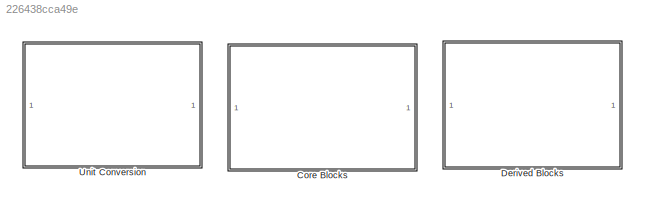
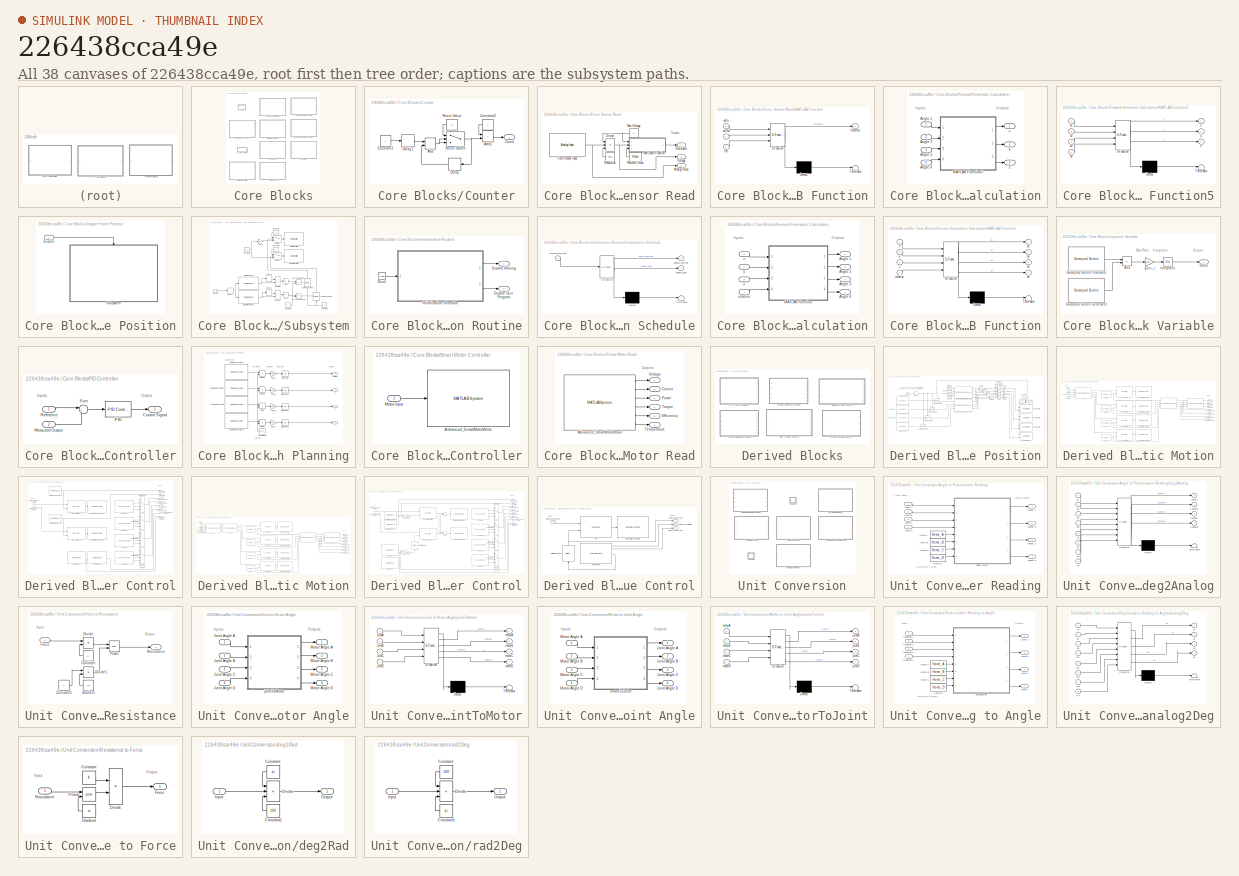
[diagram: thumbnail index - all 38 canvases of the model, root first then tree order]
MODEL slx_226438cca49e
KIND library
CONFIG AbsTol = auto
CONFIG EnableMultiTasking = off
CONFIG FixedStep = auto
CONFIG MaxStep = auto
CONFIG MinStep = auto
CONFIG RelTol = 1e-3
CONFIG SampleTimeConstraint = Unconstrained
CONFIG SolverName = VariableStepAuto
CONFIG StartTime = 0.0
CONFIG StopTime = 10.0
BLOCK [SubSystem] Core Blocks
  Ports = []
  RequestExecContextInheritance = off
BLOCK [SubSystem] Core Blocks/Counter
  Ports = [0, 1]
  RequestExecContextInheritance = off
BLOCK [Sum] Core Blocks/Counter/Add
  IconShape = rectangular
  Ports = [2, 1]
BLOCK [Sum] Core Blocks/Counter/Add1
  IconShape = rectangular
  Ports = [2, 1]
BLOCK [Constant] Core Blocks/Counter/Constant1
BLOCK [Constant] Core Blocks/Counter/Constant2
  NameLocation = top
BLOCK [Outport] Core Blocks/Counter/Count
  NameLocation = right
BLOCK [Delay] Core Blocks/Counter/Delay
  DelayLength = cycleTime/SampleTime
  InputPortMap = u0
  NameLocation = top
  Ports = [1, 1]
  SampleTime = SampleTime
BLOCK [Delay] Core Blocks/Counter/Delay1
  DelayLength = cycleTime/SampleTime
  InputPortMap = u0
  Ports = [1, 1]
  SampleTime = SampleTime
BLOCK [Switch] Core Blocks/Counter/Reset Switch
  Criteria = u2 > Threshold
  InputSameDT = off
  SaturateOnIntegerOverflow = off
  Threshold = cycles-1
BLOCK [Constant] Core Blocks/Counter/Reset Value
  NameLocation = top
  Value = 0
BLOCK [SubSystem] Core Blocks/Force Sensor Read
  Ports = [0, 3]
  RequestExecContextInheritance = off
BLOCK [Outport] Core Blocks/Force Sensor Read/Analog Value
  NameLocation = right
  Port = 3
BLOCK [Product] Core Blocks/Force Sensor Read/Divide
  Inputs = **/
  Ports = [3, 1]
BLOCK [Reference] Core Blocks/Force Sensor Read/Force Sensor Input  REF=vexv5lib/Sensors/Analog Input
  Ports = [0, 1]
  SourceBlock = vexv5lib/Sensors/Analog Input
  SourceProductBaseCode = VEXV5
  SourceType = vexv5.AnalogInput
BLOCK [SubSystem] Core Blocks/Force Sensor Read/MATLAB Function
  ErrorFcn = Stateflow.Translate.translate
  PermitHierarchicalResolution = ExplicitOnly
  Ports = [3, 1]
  RequestExecContextInheritance = off
  SFBlockType = MATLAB Function
  TreatAsAtomicUnit = on
BLOCK [Demux] Core Blocks/Force Sensor Read/MATLAB Function/ Demux 
  Outputs = 1
  Ports = [1, 1]
BLOCK [S-Function] Core Blocks/Force Sensor Read/MATLAB Function/ SFunction 
  EnableBusSupport = on
  FunctionName = sf_sfun
  PortCounts = [3 2]
  Ports = [3, 2]
  SFcnIsStateOwnerBlock = off
  SFunctionDeploymentMode = off
  Tag = Stateflow S-Function 2
BLOCK [Terminator] Core Blocks/Force Sensor Read/MATLAB Function/ Terminator 
BLOCK [Outport] Core Blocks/Force Sensor Read/MATLAB Function/forceRes
BLOCK [Inport] Core Blocks/Force Sensor Read/MATLAB Function/res
  Port = 3
BLOCK [Inport] Core Blocks/Force Sensor Read/MATLAB Function/volIn
BLOCK [Inport] Core Blocks/Force Sensor Read/MATLAB Function/volOut
  Port = 2
BLOCK [Constant] Core Blocks/Force Sensor Read/Max Voltage
  NameLocation = top
  Value = 5
BLOCK [Outport] Core Blocks/Force Sensor Read/Resistance
  NameLocation = right
BLOCK [Constant] Core Blocks/Force Sensor Read/Resistor Value
  Value = Value
BLOCK [Constant] Core Blocks/Force Sensor Read/Resolution
  Value = 4095
BLOCK [Outport] Core Blocks/Force Sensor Read/Voltage
  NameLocation = right
  Port = 2
BLOCK [SubSystem] Core Blocks/Forward Kinematic Calculation
  Ports = [4, 3]
  RequestExecContextInheritance = off
BLOCK [Inport] Core Blocks/Forward Kinematic Calculation/Angle 1
  NameLocation = left
BLOCK [Inport] Core Blocks/Forward Kinematic Calculation/Angle 2
  NameLocation = left
  Port = 2
BLOCK [Inport] Core Blocks/Forward Kinematic Calculation/Angle 3
  NameLocation = left
  Port = 3
BLOCK [Inport] Core Blocks/Forward Kinematic Calculation/Angle 4
  NameLocation = left
  Port = 4
BLOCK [SubSystem] Core Blocks/Forward Kinematic Calculation/MATLAB Function5
  ErrorFcn = Stateflow.Translate.translate
  PermitHierarchicalResolution = ExplicitOnly
  Ports = [4, 3]
  RequestExecContextInheritance = off
  SFBlockType = MATLAB Function
  TreatAsAtomicUnit = on
BLOCK [Demux] Core Blocks/Forward Kinematic Calculation/MATLAB Function5/ Demux 
  Outputs = 1
  Ports = [1, 1]
BLOCK [S-Function] Core Blocks/Forward Kinematic Calculation/MATLAB Function5/ SFunction 
  EnableBusSupport = on
  FunctionName = sf_sfun
  PortCounts = [4 4]
  Ports = [4, 4]
  SFcnIsStateOwnerBlock = off
  SFunctionDeploymentMode = off
  Tag = Stateflow S-Function 6
BLOCK [Terminator] Core Blocks/Forward Kinematic Calculation/MATLAB Function5/ Terminator 
BLOCK [Inport] Core Blocks/Forward Kinematic Calculation/MATLAB Function5/a1
BLOCK [Inport] Core Blocks/Forward Kinematic Calculation/MATLAB Function5/a2
  Port = 2
BLOCK [Inport] Core Blocks/Forward Kinematic Calculation/MATLAB Function5/a3
  Port = 3
BLOCK [Inport] Core Blocks/Forward Kinematic Calculation/MATLAB Function5/a4
  Port = 4
BLOCK [Outport] Core Blocks/Forward Kinematic Calculation/MATLAB Function5/x
BLOCK [Outport] Core Blocks/Forward Kinematic Calculation/MATLAB Function5/y
  Port = 2
BLOCK [Outport] Core Blocks/Forward Kinematic Calculation/MATLAB Function5/z
  Port = 3
BLOCK [Outport] Core Blocks/Forward Kinematic Calculation/x
  NameLocation = right
BLOCK [Outport] Core Blocks/Forward Kinematic Calculation/y
  NameLocation = right
  Port = 2
BLOCK [Outport] Core Blocks/Forward Kinematic Calculation/z
  NameLocation = right
  Port = 3
BLOCK [SubSystem] Core Blocks/Gripper Home Position
  Ports = [1]
  RequestExecContextInheritance = off
BLOCK [Inport] Core Blocks/Gripper Home Position/Enable
  NameLocation = left
BLOCK [SubSystem] Core Blocks/Gripper Home Position/Subsystem
  Ports = [0, 0, 1]
  RequestExecContextInheritance = off
BLOCK [Abs] Core Blocks/Gripper Home Position/Subsystem/Abs
  SaturateOnIntegerOverflow = off
BLOCK [Abs] Core Blocks/Gripper Home Position/Subsystem/Abs1
  SaturateOnIntegerOverflow = off
BLOCK [Constant] Core Blocks/Gripper Home Position/Subsystem/Constant3
  Value = 5
BLOCK [Constant] Core Blocks/Gripper Home Position/Subsystem/Constant5
  NameLocation = top
  Value = 0
BLOCK [Constant] Core Blocks/Gripper Home Position/Subsystem/Constant6
  NameLocation = top
  Value = 0
BLOCK [Constant] Core Blocks/Gripper Home Position/Subsystem/Constant7
  NameLocation = top
BLOCK [Constant] Core Blocks/Gripper Home Position/Subsystem/Constant8
  Value = 2
BLOCK [Delay] Core Blocks/Gripper Home Position/Subsystem/Delay1
  DelayLength = 0.3/SampleTime
  InputPortMap = u0
  Ports = [1, 1]
  SampleTime = SampleTime
BLOCK [Delay] Core Blocks/Gripper Home Position/Subsystem/Delay2
  DelayLength = 0.3/SampleTime
  InputPortMap = u0
  Ports = [1, 1]
  SampleTime = SampleTime
BLOCK [Delay] Core Blocks/Gripper Home Position/Subsystem/Delay3
  DelayLength = 4.5 / SampleTime
  InputPortMap = u0
  Ports = [1, 1]
  SampleTime = SampleTime
BLOCK [EnablePort] Core Blocks/Gripper Home Position/Subsystem/Enable
  Ports = [0, 1]
  ShowOutputPort = on
BLOCK [Gain] Core Blocks/Gripper Home Position/Subsystem/Gain4
  Gain = -1
BLOCK [Reference] Core Blocks/Gripper Home Position/Subsystem/Left Gripper Read  REF=vexv5lib/Sensors/Smart Motor Read
  NameLocation = top
  Ports = [1, 1]
  SourceBlock = vexv5lib/Sensors/Smart Motor Read
  SourceProductBaseCode = VEXV5
  SourceType = vexv5.SmartMotorRead
BLOCK [Reference] Core Blocks/Gripper Home Position/Subsystem/Left Gripper Write  REF=vexv5lib/Actuators/Smart Motor Write
  NameLocation = right
  Ports = [1]
  SourceBlock = vexv5lib/Actuators/Smart Motor Write
  SourceProductBaseCode = VEXV5
  SourceType = vexv5.SmartMotorWrite
BLOCK [RelationalOperator] Core Blocks/Gripper Home Position/Subsystem/LessThanOrEqual
  InputSameDT = off
  Operator = <=
  OutDataTypeStr = boolean
  Ports = [2, 1]
  RndMeth = Simplest
BLOCK [RelationalOperator] Core Blocks/Gripper Home Position/Subsystem/LessThanOrEqual1
  InputSameDT = off
  Operator = <=
  OutDataTypeStr = boolean
  Ports = [2, 1]
  RndMeth = Simplest
BLOCK [Reference] Core Blocks/Gripper Home Position/Subsystem/Right Gripper Read  REF=vexv5lib/Sensors/Smart Motor Read
  Ports = [1, 1]
  SourceBlock = vexv5lib/Sensors/Smart Motor Read
  SourceProductBaseCode = VEXV5
  SourceType = vexv5.SmartMotorRead
BLOCK [Reference] Core Blocks/Gripper Home Position/Subsystem/Right Gripper Write  REF=vexv5lib/Actuators/Smart Motor Write
  NameLocation = right
  Ports = [1]
  SourceBlock = vexv5lib/Actuators/Smart Motor Write
  SourceProductBaseCode = VEXV5
  SourceType = vexv5.SmartMotorWrite
BLOCK [Reference] Core Blocks/Gripper Home Position/Subsystem/Sample and Hold 1  REF=dspsigops/Sample
and Hold
  NameLocation = right
  Ports = [1, 1, 0, 1]
  SourceBlock = dspsigops/Sample\nand Hold
  SourceProductBaseCode = DS
  SourceType = Sample and Hold
BLOCK [Reference] Core Blocks/Gripper Home Position/Subsystem/Sample and Hold 2  REF=dspsigops/Sample
and Hold
  NameLocation = right
  Ports = [1, 1, 0, 1]
  SourceBlock = dspsigops/Sample\nand Hold
  SourceProductBaseCode = DS
  SourceType = Sample and Hold
BLOCK [Sum] Core Blocks/Gripper Home Position/Subsystem/Subtract4
  IconShape = rectangular
  Inputs = +-
  Ports = [2, 1]
BLOCK [Sum] Core Blocks/Gripper Home Position/Subsystem/Subtract5
  IconShape = rectangular
  Inputs = +-
  Ports = [2, 1]
BLOCK [Switch] Core Blocks/Gripper Home Position/Subsystem/Switch2
  Criteria = u2 > Threshold
  InputSameDT = off
  SaturateOnIntegerOverflow = off
BLOCK [Switch] Core Blocks/Gripper Home Position/Subsystem/Switch3
  Criteria = u2 > Threshold
  InputSameDT = off
  SaturateOnIntegerOverflow = off
BLOCK [SubSystem] Core Blocks/Initialisation Routine
  Ports = [0, 2]
  RequestExecContextInheritance = off
BLOCK [Clock] Core Blocks/Initialisation Routine/Clock
BLOCK [Outport] Core Blocks/Initialisation Routine/Enable Homing
  NameLocation = right
BLOCK [Outport] Core Blocks/Initialisation Routine/Enable User Program
  NameLocation = right
  Port = 2
BLOCK [SubSystem] Core Blocks/Initialisation Routine/Initialisation Schedule
  ErrorFcn = Stateflow.Translate.translate
  PermitHierarchicalResolution = ExplicitOnly
  Ports = [1, 2]
  RequestExecContextInheritance = off
  SFBlockType = Chart
  TreatAsAtomicUnit = on
BLOCK [Demux] Core Blocks/Initialisation Routine/Initialisation Schedule/ Demux 
  Outputs = 1
  Ports = [1, 1]
BLOCK [S-Function] Core Blocks/Initialisation Routine/Initialisation Schedule/ SFunction 
  EnableBusSupport = off
  FunctionName = sf_sfun
  PortCounts = [1 3]
  Ports = [1, 3]
  SFcnIsStateOwnerBlock = off
  SFunctionDeploymentMode = off
  Tag = Stateflow S-Function 13
BLOCK [Terminator] Core Blocks/Initialisation Routine/Initialisation Schedule/ Terminator 
BLOCK [Outport] Core Blocks/Initialisation Routine/Initialisation Schedule/enable_homing
BLOCK [Outport] Core Blocks/Initialisation Routine/Initialisation Schedule/enable_user
  Port = 2
BLOCK [Inport] Core Blocks/Initialisation Routine/Initialisation Schedule/simulation_time
BLOCK [SubSystem] Core Blocks/Inverse Kinematics Calculation
  Ports = [4, 4]
  RequestExecContextInheritance = off
BLOCK [Outport] Core Blocks/Inverse Kinematics Calculation/Angle 1
  NameLocation = right
BLOCK [Outport] Core Blocks/Inverse Kinematics Calculation/Angle 2
  NameLocation = right
  Port = 2
BLOCK [Outport] Core Blocks/Inverse Kinematics Calculation/Angle 3
  NameLocation = right
  Port = 3
BLOCK [Outport] Core Blocks/Inverse Kinematics Calculation/Angle 4
  NameLocation = right
  Port = 4
BLOCK [SubSystem] Core Blocks/Inverse Kinematics Calculation/MATLAB Function
  ErrorFcn = Stateflow.Translate.translate
  PermitHierarchicalResolution = ExplicitOnly
  Ports = [4, 4]
  RequestExecContextInheritance = off
  SFBlockType = MATLAB Function
  TreatAsAtomicUnit = on
BLOCK [Demux] Core Blocks/Inverse Kinematics Calculation/MATLAB Function/ Demux 
  Outputs = 1
  Ports = [1, 1]
BLOCK [S-Function] Core Blocks/Inverse Kinematics Calculation/MATLAB Function/ SFunction 
  EnableBusSupport = off
  FunctionName = sf_sfun
  PortCounts = [4 5]
  Ports = [4, 5]
  SFcnIsStateOwnerBlock = off
  SFunctionDeploymentMode = off
  Tag = Stateflow S-Function 3
BLOCK [Terminator] Core Blocks/Inverse Kinematics Calculation/MATLAB Function/ Terminator 
BLOCK [Outport] Core Blocks/Inverse Kinematics Calculation/MATLAB Function/a1
BLOCK [Outport] Core Blocks/Inverse Kinematics Calculation/MATLAB Function/a2
  Port = 2
BLOCK [Outport] Core Blocks/Inverse Kinematics Calculation/MATLAB Function/a3
  Port = 3
BLOCK [Outport] Core Blocks/Inverse Kinematics Calculation/MATLAB Function/a4
  Port = 4
BLOCK [Inport] Core Blocks/Inverse Kinematics Calculation/MATLAB Function/rotation
  Port = 4
BLOCK [Inport] Core Blocks/Inverse Kinematics Calculation/MATLAB Function/x
BLOCK [Inport] Core Blocks/Inverse Kinematics Calculation/MATLAB Function/y
  Port = 2
BLOCK [Inport] Core Blocks/Inverse Kinematics Calculation/MATLAB Function/z
  Port = 3
BLOCK [Inport] Core Blocks/Inverse Kinematics Calculation/rotation
  NameLocation = left
  Port = 4
BLOCK [Inport] Core Blocks/Inverse Kinematics Calculation/x
  NameLocation = left
BLOCK [Inport] Core Blocks/Inverse Kinematics Calculation/y
  NameLocation = left
  Port = 2
BLOCK [Inport] Core Blocks/Inverse Kinematics Calculation/z
  NameLocation = left
  Port = 3
BLOCK [SubSystem] Core Blocks/Joystick Variable
  Ports = [0, 1]
  RequestExecContextInheritance = off
BLOCK [Sum] Core Blocks/Joystick Variable/Add
  IconShape = rectangular
  Inputs = +-
  Ports = [2, 1]
BLOCK [Reference] Core Blocks/Joystick Variable/Gamepad Button Decrement  REF=vexv5lib/Gamepad/Gamepad Button
  NameLocation = top
  Ports = [0, 1]
  SourceBlock = vexv5lib/Gamepad/Gamepad Button
  SourceProductBaseCode = VEXV5
  SourceType = vexv5.GamepadButton
BLOCK [Reference] Core Blocks/Joystick Variable/Gamepad Button Increment  REF=vexv5lib/Gamepad/Gamepad Button
  NameLocation = top
  Ports = [0, 1]
  SourceBlock = vexv5lib/Gamepad/Gamepad Button
  SourceProductBaseCode = VEXV5
  SourceType = vexv5.GamepadButton
BLOCK [Integrator] Core Blocks/Joystick Variable/Integrator
  InitialCondition = init
  LimitOutput = on
  LowerSaturationLimit = min
  Ports = [1, 1]
  UpperSaturationLimit = max
BLOCK [Outport] Core Blocks/Joystick Variable/Value
  NameLocation = right
BLOCK [Gain] Core Blocks/Joystick Variable/gain_r
  Gain = rate
BLOCK [SubSystem] Core Blocks/PID Controller
  Ports = [2, 1]
  RequestExecContextInheritance = off
BLOCK [Outport] Core Blocks/PID Controller/Control Signal
  NameLocation = right
BLOCK [Inport] Core Blocks/PID Controller/Measured Output
  NameLocation = left
  Port = 2
BLOCK [Reference] Core Blocks/PID Controller/PID  REF=slpidlib/PID Controller
  Ports = [1, 1]
  SourceBlock = slpidlib/PID Controller
  SourceProductBaseCode = SL
  SourceType = PID 1dof
BLOCK [Inport] Core Blocks/PID Controller/Reference
  NameLocation = left
BLOCK [Sum] Core Blocks/PID Controller/Sum
  Inputs = |+-
  Ports = [2, 1]
BLOCK [SubSystem] Core Blocks/Path Planning
  Ports = [0, 4]
  RequestExecContextInheritance = off
BLOCK [Product] Core Blocks/Path Planning/Divide
  Inputs = */
  Ports = [2, 1]
BLOCK [Product] Core Blocks/Path Planning/Divide1
  Inputs = */
  Ports = [2, 1]
BLOCK [Product] Core Blocks/Path Planning/Divide2
  Inputs = */
  Ports = [2, 1]
BLOCK [Product] Core Blocks/Path Planning/Divide3
  Inputs = */
  Ports = [2, 1]
BLOCK [Reference] Core Blocks/Path Planning/Gamepad Joystick  REF=vexv5lib/Gamepad/Gamepad Joystick
  Ports = [0, 1]
  SourceBlock = vexv5lib/Gamepad/Gamepad Joystick
  SourceProductBaseCode = VEXV5
  SourceType = vexv5.GamepadJoystick
BLOCK [Reference] Core Blocks/Path Planning/Gamepad Joystick1  REF=vexv5lib/Gamepad/Gamepad Joystick
  Ports = [0, 1]
  SourceBlock = vexv5lib/Gamepad/Gamepad Joystick
  SourceProductBaseCode = VEXV5
  SourceType = vexv5.GamepadJoystick
BLOCK [Reference] Core Blocks/Path Planning/Gamepad Joystick2  REF=vexv5lib/Gamepad/Gamepad Joystick
  Ports = [0, 1]
  SourceBlock = vexv5lib/Gamepad/Gamepad Joystick
  SourceProductBaseCode = VEXV5
  SourceType = vexv5.GamepadJoystick
BLOCK [Reference] Core Blocks/Path Planning/Gamepad Joystick3  REF=vexv5lib/Gamepad/Gamepad Joystick
  Ports = [0, 1]
  SourceBlock = vexv5lib/Gamepad/Gamepad Joystick
  SourceProductBaseCode = VEXV5
  SourceType = vexv5.GamepadJoystick
BLOCK [Integrator] Core Blocks/Path Planning/Integrator
  InitialCondition = IR
  Ports = [1, 1]
BLOCK [Integrator] Core Blocks/Path Planning/Integrator1
  InitialCondition = IX
  LimitOutput = on
  LowerSaturationLimit = 0
  Ports = [1, 1]
  UpperSaturationLimit = 300
BLOCK [Integrator] Core Blocks/Path Planning/Integrator2
  InitialCondition = IZ
  LimitOutput = on
  LowerSaturationLimit = 100
  Ports = [1, 1]
BLOCK [Integrator] Core Blocks/Path Planning/Integrator3
  InitialCondition = IY
  LowerSaturationLimit = 0
  Ports = [1, 1]
BLOCK [Constant] Core Blocks/Path Planning/Normalising
  Value = 127
BLOCK [Outport] Core Blocks/Path Planning/Rotation
  NameLocation = right
  Port = 4
BLOCK [Gain] Core Blocks/Path Planning/gain_r
  Gain = GR
BLOCK [Gain] Core Blocks/Path Planning/gain_x
  Gain = GX
BLOCK [Gain] Core Blocks/Path Planning/gain_y
  Gain = -GY
BLOCK [Gain] Core Blocks/Path Planning/gain_z
  Gain = GZ
BLOCK [Outport] Core Blocks/Path Planning/x
  NameLocation = right
BLOCK [Outport] Core Blocks/Path Planning/y
  NameLocation = right
  Port = 2
BLOCK [Outport] Core Blocks/Path Planning/z
  NameLocation = right
  Port = 3
BLOCK [SubSystem] Core Blocks/Smart Motor Controller
  Ports = [1]
  RequestExecContextInheritance = off
BLOCK [MATLABSystem] Core Blocks/Smart Motor Controller/Advanced_SmartMotorWrite
  MaskDisplay = color('white');\nplot([100,100,100,100]*1,[100,100,100,100]*1);\nplot([100,100,100,100]*0,[100,100,100,100]*0);\ncolor('black');\nimage(fullfile(codertarget.vexv5.internal.getSpPkgRootDir, 'resources', 'vex-v5-motor2.png'),'center');\npatch([0.8, 0.8, 1, 1], [0.82857, 1, 1, 0.82857], [1, 1, 1]);\ncolor('blue');\ntext(99, 92, 'VEX V5 ', 'horizontalAlignment', 'right');\ncolor('black');\ntext(62,12,'Port: 1'...<+71ch>
  MaskType = Advanced_SmartMotorWrite
  MotorBrakeMode = Coast
  OperationMode = Advanced Control
  Ports = [1]
  System = Advanced_SmartMotorWrite
  motorPort = 1
  scaleFactor = 18:1
BLOCK [Inport] Core Blocks/Smart Motor Controller/Motor Input
BLOCK [SubSystem] Core Blocks/Smart Motor Read
  Ports = [0, 6]
  RequestExecContextInheritance = off
BLOCK [MATLABSystem] Core Blocks/Smart Motor Read/Advanced_SmartMotorRead
  MaskDisplay = color('white');\nplot([100,100,100,100]*1,[100,100,100,100]*1);\nplot([100,100,100,100]*0,[100,100,100,100]*0);\ncolor('black');\nimage(fullfile(codertarget.vexcommon.internal.getRootDir, 'resources', 'encoder.jpg'),'center');\npatch([0.8, 0.8, 1, 1], [0.82857, 1, 1, 0.82857], [1, 1, 1]);\ncolor('blue');\ntext(75, 92, 'VEX V5 ', 'horizontalAlignment', 'right');\ncolor('black');\ntext(50,15,'Port: 1','horiz...<+236ch>
  MaskType = Advanced_SmartMotorRead
  Ports = [0, 6]
  SampleTime = SampleTime
  System = Advanced_SmartMotorRead
  additionalOutput = off
  motorPort = 1
BLOCK [Outport] Core Blocks/Smart Motor Read/Current
  NameLocation = right
  Port = 2
BLOCK [Outport] Core Blocks/Smart Motor Read/Efficiency
  NameLocation = right
  Port = 5
BLOCK [Outport] Core Blocks/Smart Motor Read/Power
  NameLocation = right
  Port = 3
BLOCK [Outport] Core Blocks/Smart Motor Read/Temperature
  NameLocation = right
  Port = 6
BLOCK [Outport] Core Blocks/Smart Motor Read/Torque
  NameLocation = right
  Port = 4
BLOCK [Outport] Core Blocks/Smart Motor Read/Voltage
  NameLocation = right
BLOCK [SubSystem] Derived Blocks
  Ports = []
  RequestExecContextInheritance = off
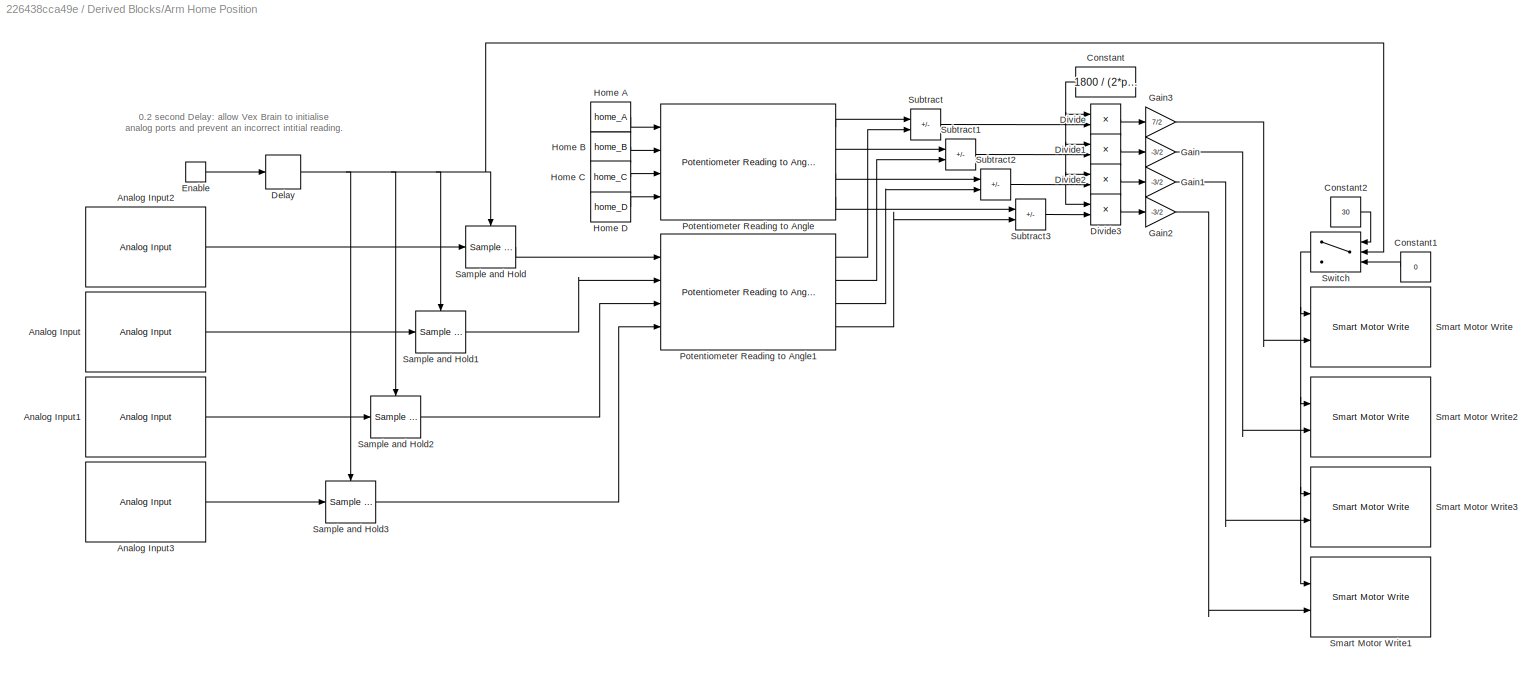
BLOCK [SubSystem] Derived Blocks/Arm Home Position
  Ports = [0, 0, 1]
  RequestExecContextInheritance = off
  ShowPortLabels = SignalName
BLOCK [Reference] Derived Blocks/Arm Home Position/Analog Input  REF=vexv5lib/Sensors/Analog Input
  Ports = [0, 1]
  SourceBlock = vexv5lib/Sensors/Analog Input
  SourceProductBaseCode = VEXV5
  SourceType = vexv5.AnalogInput
BLOCK [Reference] Derived Blocks/Arm Home Position/Analog Input1  REF=vexv5lib/Sensors/Analog Input
  Ports = [0, 1]
  SourceBlock = vexv5lib/Sensors/Analog Input
  SourceProductBaseCode = VEXV5
  SourceType = vexv5.AnalogInput
BLOCK [Reference] Derived Blocks/Arm Home Position/Analog Input2  REF=vexv5lib/Sensors/Analog Input
  Ports = [0, 1]
  SourceBlock = vexv5lib/Sensors/Analog Input
  SourceProductBaseCode = VEXV5
  SourceType = vexv5.AnalogInput
BLOCK [Reference] Derived Blocks/Arm Home Position/Analog Input3  REF=vexv5lib/Sensors/Analog Input
  Ports = [0, 1]
  SourceBlock = vexv5lib/Sensors/Analog Input
  SourceProductBaseCode = VEXV5
  SourceType = vexv5.AnalogInput
BLOCK [Constant] Derived Blocks/Arm Home Position/Constant
  NameLocation = top
  Value = 1800 / (2*pi)
BLOCK [Constant] Derived Blocks/Arm Home Position/Constant1
  NameLocation = top
  Value = 0
BLOCK [Constant] Derived Blocks/Arm Home Position/Constant2
  Value = 30
BLOCK [Delay] Derived Blocks/Arm Home Position/Delay
  DelayLength = 0.2/SampleTime
  InputPortMap = u0
  Ports = [1, 1]
  SampleTime = SampleTime
BLOCK [Product] Derived Blocks/Arm Home Position/Divide
  Inputs = **
  Ports = [2, 1]
BLOCK [Product] Derived Blocks/Arm Home Position/Divide1
  Inputs = **
  Ports = [2, 1]
BLOCK [Product] Derived Blocks/Arm Home Position/Divide2
  Inputs = **
  Ports = [2, 1]
BLOCK [Product] Derived Blocks/Arm Home Position/Divide3
  Inputs = **
  Ports = [2, 1]
BLOCK [EnablePort] Derived Blocks/Arm Home Position/Enable
  NameLocation = left
  Ports = [0, 1]
  ShowOutputPort = on
BLOCK [Gain] Derived Blocks/Arm Home Position/Gain
  Gain = -3/2
BLOCK [Gain] Derived Blocks/Arm Home Position/Gain1
  Gain = -3/2
BLOCK [Gain] Derived Blocks/Arm Home Position/Gain2
  Gain = -3/2
BLOCK [Gain] Derived Blocks/Arm Home Position/Gain3
  Gain = 7/2
BLOCK [Constant] Derived Blocks/Arm Home Position/Home A
  NameLocation = left
  Value = home_A
BLOCK [Constant] Derived Blocks/Arm Home Position/Home B
  NameLocation = left
  Value = home_B
BLOCK [Constant] Derived Blocks/Arm Home Position/Home C
  NameLocation = left
  Value = home_C
BLOCK [Constant] Derived Blocks/Arm Home Position/Home D
  NameLocation = left
  Value = home_D
BLOCK [Reference] Derived Blocks/Arm Home Position/Potentiometer Reading to Angle  REF=$bdroot/Unit Conversion/Potentiometer Reading to Angle
  Ports = [4, 4]
  SourceBlock = $bdroot/Unit Conversion/Potentiometer Reading to Angle
  SourceType = Potentiometer Reading to Analog
BLOCK [Reference] Derived Blocks/Arm Home Position/Potentiometer Reading to Angle1  REF=$bdroot/Unit Conversion/Potentiometer Reading to Angle
  Ports = [4, 4]
  SourceBlock = $bdroot/Unit Conversion/Potentiometer Reading to Angle
  SourceType = Potentiometer Reading to Analog
BLOCK [Reference] Derived Blocks/Arm Home Position/Sample and Hold  REF=dspsigops/Sample
and Hold
  Ports = [1, 1, 0, 1]
  SourceBlock = dspsigops/Sample\nand Hold
  SourceProductBaseCode = DS
  SourceType = Sample and Hold
BLOCK [Reference] Derived Blocks/Arm Home Position/Sample and Hold1  REF=dspsigops/Sample
and Hold
  Ports = [1, 1, 0, 1]
  SourceBlock = dspsigops/Sample\nand Hold
  SourceProductBaseCode = DS
  SourceType = Sample and Hold
BLOCK [Reference] Derived Blocks/Arm Home Position/Sample and Hold2  REF=dspsigops/Sample
and Hold
  Ports = [1, 1, 0, 1]
  SourceBlock = dspsigops/Sample\nand Hold
  SourceProductBaseCode = DS
  SourceType = Sample and Hold
BLOCK [Reference] Derived Blocks/Arm Home Position/Sample and Hold3  REF=dspsigops/Sample
and Hold
  Ports = [1, 1, 0, 1]
  SourceBlock = dspsigops/Sample\nand Hold
  SourceProductBaseCode = DS
  SourceType = Sample and Hold
BLOCK [Reference] Derived Blocks/Arm Home Position/Smart Motor Write  REF=vexv5lib/Actuators/Smart Motor Write
  Ports = [2]
  SourceBlock = vexv5lib/Actuators/Smart Motor Write
  SourceProductBaseCode = VEXV5
  SourceType = vexv5.SmartMotorWrite
BLOCK [Reference] Derived Blocks/Arm Home Position/Smart Motor Write1  REF=vexv5lib/Actuators/Smart Motor Write
  Ports = [2]
  SourceBlock = vexv5lib/Actuators/Smart Motor Write
  SourceProductBaseCode = VEXV5
  SourceType = vexv5.SmartMotorWrite
BLOCK [Reference] Derived Blocks/Arm Home Position/Smart Motor Write2  REF=vexv5lib/Actuators/Smart Motor Write
  Ports = [2]
  SourceBlock = vexv5lib/Actuators/Smart Motor Write
  SourceProductBaseCode = VEXV5
  SourceType = vexv5.SmartMotorWrite
BLOCK [Reference] Derived Blocks/Arm Home Position/Smart Motor Write3  REF=vexv5lib/Actuators/Smart Motor Write
  Ports = [2]
  SourceBlock = vexv5lib/Actuators/Smart Motor Write
  SourceProductBaseCode = VEXV5
  SourceType = vexv5.SmartMotorWrite
BLOCK [Sum] Derived Blocks/Arm Home Position/Subtract
  IconShape = rectangular
  Inputs = +-
  Ports = [2, 1]
BLOCK [Sum] Derived Blocks/Arm Home Position/Subtract1
  IconShape = rectangular
  Inputs = +-
  Ports = [2, 1]
BLOCK [Sum] Derived Blocks/Arm Home Position/Subtract2
  IconShape = rectangular
  Inputs = +-
  Ports = [2, 1]
BLOCK [Sum] Derived Blocks/Arm Home Position/Subtract3
  IconShape = rectangular
  Inputs = +-
  Ports = [2, 1]
BLOCK [Switch] Derived Blocks/Arm Home Position/Switch
  Criteria = u2 > Threshold
  InputSameDT = off
  NameLocation = top
  SaturateOnIntegerOverflow = off
BLOCK [SubSystem] Derived Blocks/Forward Kinematic Motion
  Ports = [4, 7]
  RequestExecContextInheritance = off
BLOCK [Reference] Derived Blocks/Forward Kinematic Motion/A2P  REF=$bdroot/Unit Conversion/Angle to Potentiometer Reading
  Ports = [4, 4]
  SourceBlock = $bdroot/Unit Conversion/Angle to Potentiometer Reading
  SourceType = Angle to Potentiometer Reading
BLOCK [Inport] Derived Blocks/Forward Kinematic Motion/Angle A
  NameLocation = left
BLOCK [Inport] Derived Blocks/Forward Kinematic Motion/Angle B
  NameLocation = left
  Port = 2
BLOCK [Inport] Derived Blocks/Forward Kinematic Motion/Angle C
  NameLocation = left
  Port = 3
BLOCK [Inport] Derived Blocks/Forward Kinematic Motion/Angle D
  NameLocation = left
  Port = 4
BLOCK [Reference] Derived Blocks/Forward Kinematic Motion/FKC  REF=$bdroot/Core Blocks/Forward Kinematic Calculation
  Ports = [4, 3]
  SourceBlock = $bdroot/Core Blocks/Forward Kinematic Calculation
  SourceType = Forward Kinematic Calculation
BLOCK [Reference] Derived Blocks/Forward Kinematic Motion/Input A  REF=vexv5lib/Sensors/Analog Input
  Ports = [0, 1]
  SourceBlock = vexv5lib/Sensors/Analog Input
  SourceProductBaseCode = VEXV5
  SourceType = vexv5.AnalogInput
BLOCK [Reference] Derived Blocks/Forward Kinematic Motion/Input B  REF=vexv5lib/Sensors/Analog Input
  Ports = [0, 1]
  SourceBlock = vexv5lib/Sensors/Analog Input
  SourceProductBaseCode = VEXV5
  SourceType = vexv5.AnalogInput
BLOCK [Reference] Derived Blocks/Forward Kinematic Motion/Input C  REF=vexv5lib/Sensors/Analog Input
  Ports = [0, 1]
  SourceBlock = vexv5lib/Sensors/Analog Input
  SourceProductBaseCode = VEXV5
  SourceType = vexv5.AnalogInput
BLOCK [Reference] Derived Blocks/Forward Kinematic Motion/Input D  REF=vexv5lib/Sensors/Analog Input
  Ports = [0, 1]
  SourceBlock = vexv5lib/Sensors/Analog Input
  SourceProductBaseCode = VEXV5
  SourceType = vexv5.AnalogInput
BLOCK [Outport] Derived Blocks/Forward Kinematic Motion/Measured Angle A
  NameLocation = right
  Port = 4
BLOCK [Outport] Derived Blocks/Forward Kinematic Motion/Measured Angle B
  NameLocation = right
  Port = 5
BLOCK [Outport] Derived Blocks/Forward Kinematic Motion/Measured Angle C
  NameLocation = right
  Port = 6
BLOCK [Outport] Derived Blocks/Forward Kinematic Motion/Measured Angle D
  NameLocation = right
  Port = 7
BLOCK [Outport] Derived Blocks/Forward Kinematic Motion/Measured x
  NameLocation = right
BLOCK [Outport] Derived Blocks/Forward Kinematic Motion/Measured y
  NameLocation = right
  Port = 2
BLOCK [Outport] Derived Blocks/Forward Kinematic Motion/Measured z
  NameLocation = right
  Port = 3
BLOCK [Reference] Derived Blocks/Forward Kinematic Motion/P2A  REF=$bdroot/Unit Conversion/Potentiometer Reading to Angle
  Ports = [4, 4]
  SourceBlock = $bdroot/Unit Conversion/Potentiometer Reading to Angle
  SourceType = Potentiometer Reading to Analog
BLOCK [Reference] Derived Blocks/Forward Kinematic Motion/PID Controller A  REF=$bdroot/Core Blocks/PID Controller
  Ports = [2, 1]
  SourceBlock = $bdroot/Core Blocks/PID Controller
  SourceType = PID Controller
BLOCK [Reference] Derived Blocks/Forward Kinematic Motion/PID Controller B  REF=$bdroot/Core Blocks/PID Controller
  Ports = [2, 1]
  SourceBlock = $bdroot/Core Blocks/PID Controller
  SourceType = PID Controller
BLOCK [Reference] Derived Blocks/Forward Kinematic Motion/PID Controller C  REF=$bdroot/Core Blocks/PID Controller
  Ports = [2, 1]
  SourceBlock = $bdroot/Core Blocks/PID Controller
  SourceType = PID Controller
BLOCK [Reference] Derived Blocks/Forward Kinematic Motion/PID Controller D  REF=$bdroot/Core Blocks/PID Controller
  Ports = [2, 1]
  SourceBlock = $bdroot/Core Blocks/PID Controller
  SourceType = PID Controller
BLOCK [Reference] Derived Blocks/Forward Kinematic Motion/Smart Motor Controller A  REF=$bdroot/Core Blocks/Smart Motor Controller
  Ports = [1]
  SourceBlock = $bdroot/Core Blocks/Smart Motor Controller
  SourceType = Smart Motor Controller
BLOCK [Reference] Derived Blocks/Forward Kinematic Motion/Smart Motor Controller B  REF=$bdroot/Core Blocks/Smart Motor Controller
  Ports = [1]
  SourceBlock = $bdroot/Core Blocks/Smart Motor Controller
  SourceType = Smart Motor Controller
BLOCK [Reference] Derived Blocks/Forward Kinematic Motion/Smart Motor Controller C  REF=$bdroot/Core Blocks/Smart Motor Controller
  Ports = [1]
  SourceBlock = $bdroot/Core Blocks/Smart Motor Controller
  SourceType = Smart Motor Controller
BLOCK [Reference] Derived Blocks/Forward Kinematic Motion/Smart Motor Controller D  REF=$bdroot/Core Blocks/Smart Motor Controller
  Ports = [1]
  SourceBlock = $bdroot/Core Blocks/Smart Motor Controller
  SourceType = Smart Motor Controller
BLOCK [SubSystem] Derived Blocks/Individual Gripper Control
  Ports = [2, 8]
  RequestExecContextInheritance = off
BLOCK [Constant] Derived Blocks/Individual Gripper Control/Constant3
  NameLocation = top
  Value = fsr_unit
BLOCK [Outport] Derived Blocks/Individual Gripper Control/FSR L1 Reading
  NameLocation = right
  Port = 5
BLOCK [Outport] Derived Blocks/Individual Gripper Control/FSR L2 Reading
  NameLocation = right
  Port = 6
BLOCK [Reference] Derived Blocks/Individual Gripper Control/FSR Left 1  REF=$bdroot/Core Blocks/Force Sensor Read
  Ports = [0, 3]
  SourceBlock = $bdroot/Core Blocks/Force Sensor Read
  SourceType = Force Sensor Read
BLOCK [Reference] Derived Blocks/Individual Gripper Control/FSR Left 2  REF=$bdroot/Core Blocks/Force Sensor Read
  Ports = [0, 3]
  SourceBlock = $bdroot/Core Blocks/Force Sensor Read
  SourceType = Force Sensor Read
BLOCK [Outport] Derived Blocks/Individual Gripper Control/FSR R1 Reading
  NameLocation = right
  Port = 3
BLOCK [Outport] Derived Blocks/Individual Gripper Control/FSR R2 Reading
  NameLocation = right
  Port = 4
BLOCK [Reference] Derived Blocks/Individual Gripper Control/FSR Right 1  REF=$bdroot/Core Blocks/Force Sensor Read
  Ports = [0, 3]
  SourceBlock = $bdroot/Core Blocks/Force Sensor Read
  SourceType = Force Sensor Read
BLOCK [Reference] Derived Blocks/Individual Gripper Control/FSR Right 2  REF=$bdroot/Core Blocks/Force Sensor Read
  Ports = [0, 3]
  SourceBlock = $bdroot/Core Blocks/Force Sensor Read
  SourceType = Force Sensor Read
BLOCK [Outport] Derived Blocks/Individual Gripper Control/Left Position
  NameLocation = right
  Port = 2
BLOCK [Reference] Derived Blocks/Individual Gripper Control/Left Smart Motor Controller  REF=$bdroot/Core Blocks/Smart Motor Controller
  Ports = [1]
  SourceBlock = $bdroot/Core Blocks/Smart Motor Controller
  SourceType = Smart Motor Controller
BLOCK [Reference] Derived Blocks/Individual Gripper Control/Left Torque  REF=$bdroot/Core Blocks/Smart Motor Read
  Ports = [0, 6]
  SourceBlock = $bdroot/Core Blocks/Smart Motor Read
  SourceType = Smart Motor Read
BLOCK [Outport] Derived Blocks/Individual Gripper Control/Measured Left Torque
  NameLocation = right
  Port = 8
BLOCK [Outport] Derived Blocks/Individual Gripper Control/Measured Right Torque
  NameLocation = right
  Port = 7
BLOCK [MultiPortSwitch] Derived Blocks/Individual Gripper Control/Multiport Switch
  InputSameDT = off
  Ports = [4, 1]
  SaturateOnIntegerOverflow = off
BLOCK [MultiPortSwitch] Derived Blocks/Individual Gripper Control/Multiport Switch1
  InputSameDT = off
  Ports = [4, 1]
  SaturateOnIntegerOverflow = off
BLOCK [MultiPortSwitch] Derived Blocks/Individual Gripper Control/Multiport Switch2
  InputSameDT = off
  Ports = [4, 1]
  SaturateOnIntegerOverflow = off
BLOCK [MultiPortSwitch] Derived Blocks/Individual Gripper Control/Multiport Switch3
  InputSameDT = off
  Ports = [4, 1]
  SaturateOnIntegerOverflow = off
BLOCK [Reference] Derived Blocks/Individual Gripper Control/PID Controller Left  REF=$bdroot/Core Blocks/PID Controller
  Ports = [2, 1]
  SourceBlock = $bdroot/Core Blocks/PID Controller
  SourceType = PID Controller
BLOCK [Reference] Derived Blocks/Individual Gripper Control/PID Controller Right  REF=$bdroot/Core Blocks/PID Controller
  Ports = [2, 1]
  SourceBlock = $bdroot/Core Blocks/PID Controller
  SourceType = PID Controller
BLOCK [Inport] Derived Blocks/Individual Gripper Control/Reference Left Position
  NameLocation = left
  Port = 2
BLOCK [Inport] Derived Blocks/Individual Gripper Control/Reference Right Position
  NameLocation = left
BLOCK [Outport] Derived Blocks/Individual Gripper Control/Right Position
  NameLocation = right
BLOCK [Reference] Derived Blocks/Individual Gripper Control/Right Smart Motor Controller  REF=$bdroot/Core Blocks/Smart Motor Controller
  Ports = [1]
  SourceBlock = $bdroot/Core Blocks/Smart Motor Controller
  SourceType = Smart Motor Controller
BLOCK [Reference] Derived Blocks/Individual Gripper Control/Right Torque  REF=$bdroot/Core Blocks/Smart Motor Read
  Ports = [0, 6]
  SourceBlock = $bdroot/Core Blocks/Smart Motor Read
  SourceType = Smart Motor Read
BLOCK [Reference] Derived Blocks/Individual Gripper Control/Smart Motor Read Left  REF=vexv5lib/Sensors/Smart Motor Read
  Ports = [0, 1]
  SourceBlock = vexv5lib/Sensors/Smart Motor Read
  SourceProductBaseCode = VEXV5
  SourceType = vexv5.SmartMotorRead
BLOCK [Reference] Derived Blocks/Individual Gripper Control/Smart Motor Read Right  REF=vexv5lib/Sensors/Smart Motor Read
  Ports = [0, 1]
  SourceBlock = vexv5lib/Sensors/Smart Motor Read
  SourceProductBaseCode = VEXV5
  SourceType = vexv5.SmartMotorRead
BLOCK [SubSystem] Derived Blocks/Inverse Kinematic Motion
  Ports = [4, 7]
  RequestExecContextInheritance = off
BLOCK [Reference] Derived Blocks/Inverse Kinematic Motion/A2P  REF=$bdroot/Unit Conversion/Angle to Potentiometer Reading
  Ports = [4, 4]
  SourceBlock = $bdroot/Unit Conversion/Angle to Potentiometer Reading
  SourceType = Angle to Potentiometer Reading
BLOCK [Reference] Derived Blocks/Inverse Kinematic Motion/FKC  REF=$bdroot/Core Blocks/Forward Kinematic Calculation
  Ports = [4, 3]
  SourceBlock = $bdroot/Core Blocks/Forward Kinematic Calculation
  SourceType = Forward Kinematic Calculation
BLOCK [Reference] Derived Blocks/Inverse Kinematic Motion/IKC  REF=$bdroot/Core Blocks/Inverse Kinematics Calculation
  Ports = [4, 4]
  SourceBlock = $bdroot/Core Blocks/Inverse Kinematics Calculation
  SourceType = Inverse Kinematics
BLOCK [Reference] Derived Blocks/Inverse Kinematic Motion/Input A  REF=vexv5lib/Sensors/Analog Input
  Ports = [0, 1]
  SourceBlock = vexv5lib/Sensors/Analog Input
  SourceProductBaseCode = VEXV5
  SourceType = vexv5.AnalogInput
BLOCK [Reference] Derived Blocks/Inverse Kinematic Motion/Input B  REF=vexv5lib/Sensors/Analog Input
  Ports = [0, 1]
  SourceBlock = vexv5lib/Sensors/Analog Input
  SourceProductBaseCode = VEXV5
  SourceType = vexv5.AnalogInput
BLOCK [Reference] Derived Blocks/Inverse Kinematic Motion/Input C  REF=vexv5lib/Sensors/Analog Input
  Ports = [0, 1]
  SourceBlock = vexv5lib/Sensors/Analog Input
  SourceProductBaseCode = VEXV5
  SourceType = vexv5.AnalogInput
BLOCK [Reference] Derived Blocks/Inverse Kinematic Motion/Input D  REF=vexv5lib/Sensors/Analog Input
  Ports = [0, 1]
  SourceBlock = vexv5lib/Sensors/Analog Input
  SourceProductBaseCode = VEXV5
  SourceType = vexv5.AnalogInput
BLOCK [Outport] Derived Blocks/Inverse Kinematic Motion/Measured Angle A
  NameLocation = right
  Port = 4
BLOCK [Outport] Derived Blocks/Inverse Kinematic Motion/Measured Angle B
  NameLocation = right
  Port = 5
BLOCK [Outport] Derived Blocks/Inverse Kinematic Motion/Measured Angle C
  NameLocation = right
  Port = 6
BLOCK [Outport] Derived Blocks/Inverse Kinematic Motion/Measured Angle D
  NameLocation = right
  Port = 7
BLOCK [Outport] Derived Blocks/Inverse Kinematic Motion/Measured x
  NameLocation = right
BLOCK [Outport] Derived Blocks/Inverse Kinematic Motion/Measured y
  NameLocation = right
  Port = 2
BLOCK [Outport] Derived Blocks/Inverse Kinematic Motion/Measured z
  NameLocation = right
  Port = 3
BLOCK [Reference] Derived Blocks/Inverse Kinematic Motion/P2A  REF=$bdroot/Unit Conversion/Potentiometer Reading to Angle
  Ports = [4, 4]
  SourceBlock = $bdroot/Unit Conversion/Potentiometer Reading to Angle
  SourceType = Potentiometer Reading to Analog
BLOCK [Reference] Derived Blocks/Inverse Kinematic Motion/PID Controller A  REF=$bdroot/Core Blocks/PID Controller
  Ports = [2, 1]
  SourceBlock = $bdroot/Core Blocks/PID Controller
  SourceType = PID Controller
BLOCK [Reference] Derived Blocks/Inverse Kinematic Motion/PID Controller B  REF=$bdroot/Core Blocks/PID Controller
  Ports = [2, 1]
  SourceBlock = $bdroot/Core Blocks/PID Controller
  SourceType = PID Controller
BLOCK [Reference] Derived Blocks/Inverse Kinematic Motion/PID Controller C  REF=$bdroot/Core Blocks/PID Controller
  Ports = [2, 1]
  SourceBlock = $bdroot/Core Blocks/PID Controller
  SourceType = PID Controller
BLOCK [Reference] Derived Blocks/Inverse Kinematic Motion/PID Controller D  REF=$bdroot/Core Blocks/PID Controller
  Ports = [2, 1]
  SourceBlock = $bdroot/Core Blocks/PID Controller
  SourceType = PID Controller
BLOCK [Inport] Derived Blocks/Inverse Kinematic Motion/Reference Rotation
  NameLocation = left
  Port = 4
BLOCK [Inport] Derived Blocks/Inverse Kinematic Motion/Reference x
  NameLocation = left
BLOCK [Inport] Derived Blocks/Inverse Kinematic Motion/Reference y
  NameLocation = left
  Port = 2
BLOCK [Inport] Derived Blocks/Inverse Kinematic Motion/Reference z
  NameLocation = left
  Port = 3
BLOCK [Reference] Derived Blocks/Inverse Kinematic Motion/Smart Motor Controller A  REF=$bdroot/Core Blocks/Smart Motor Controller
  Ports = [1]
  SourceBlock = $bdroot/Core Blocks/Smart Motor Controller
  SourceType = Smart Motor Controller
BLOCK [Reference] Derived Blocks/Inverse Kinematic Motion/Smart Motor Controller B  REF=$bdroot/Core Blocks/Smart Motor Controller
  Ports = [1]
  SourceBlock = $bdroot/Core Blocks/Smart Motor Controller
  SourceType = Smart Motor Controller
BLOCK [Reference] Derived Blocks/Inverse Kinematic Motion/Smart Motor Controller C  REF=$bdroot/Core Blocks/Smart Motor Controller
  Ports = [1]
  SourceBlock = $bdroot/Core Blocks/Smart Motor Controller
  SourceType = Smart Motor Controller
BLOCK [Reference] Derived Blocks/Inverse Kinematic Motion/Smart Motor Controller D  REF=$bdroot/Core Blocks/Smart Motor Controller
  Ports = [1]
  SourceBlock = $bdroot/Core Blocks/Smart Motor Controller
  SourceType = Smart Motor Controller
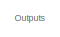
[diagram: Derived Blocks/Joint Gripper Control - part 1/3, top right region]
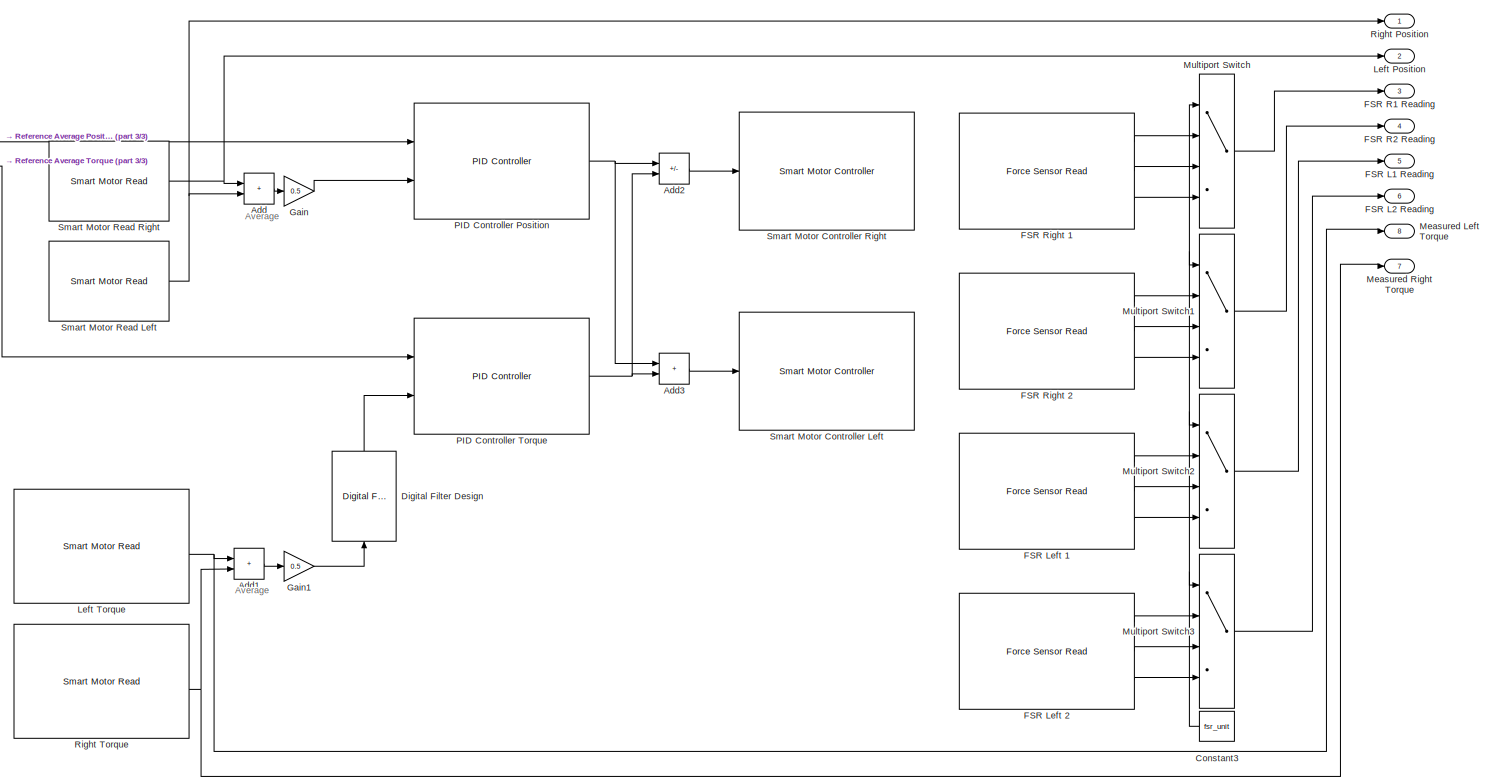
[diagram: Derived Blocks/Joint Gripper Control - part 2/3, most of the canvas]
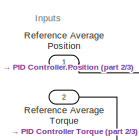
[diagram: Derived Blocks/Joint Gripper Control - part 3/3, top left region]
BLOCK [SubSystem] Derived Blocks/Joint Gripper Control
  Ports = [2, 8]
  RequestExecContextInheritance = off
BLOCK [Sum] Derived Blocks/Joint Gripper Control/Add
  IconShape = rectangular
  Ports = [2, 1]
BLOCK [Sum] Derived Blocks/Joint Gripper Control/Add1
  IconShape = rectangular
  Ports = [2, 1]
BLOCK [Sum] Derived Blocks/Joint Gripper Control/Add2
  IconShape = rectangular
  Inputs = +-
  Ports = [2, 1]
BLOCK [Sum] Derived Blocks/Joint Gripper Control/Add3
  IconShape = rectangular
  Ports = [2, 1]
BLOCK [Constant] Derived Blocks/Joint Gripper Control/Constant3
  NameLocation = top
  Value = fsr_unit
BLOCK [Reference] Derived Blocks/Joint Gripper Control/Digital Filter Design  REF=dsparch4/Digital
Filter Design
  NameLocation = right
  Ports = [1, 1]
  SourceBlock = dsparch4/Digital\nFilter Design
  SourceProductBaseCode = DS
  SourceType = Digital Filter Design
  UserDataPersistent = on
BLOCK [Outport] Derived Blocks/Joint Gripper Control/FSR L1 Reading
  NameLocation = right
  Port = 5
BLOCK [Outport] Derived Blocks/Joint Gripper Control/FSR L2 Reading
  NameLocation = right
  Port = 6
BLOCK [Reference] Derived Blocks/Joint Gripper Control/FSR Left 1  REF=$bdroot/Core Blocks/Force Sensor Read
  Ports = [0, 3]
  SourceBlock = $bdroot/Core Blocks/Force Sensor Read
  SourceType = Force Sensor Read
BLOCK [Reference] Derived Blocks/Joint Gripper Control/FSR Left 2  REF=$bdroot/Core Blocks/Force Sensor Read
  Ports = [0, 3]
  SourceBlock = $bdroot/Core Blocks/Force Sensor Read
  SourceType = Force Sensor Read
BLOCK [Outport] Derived Blocks/Joint Gripper Control/FSR R1 Reading
  NameLocation = right
  Port = 3
BLOCK [Outport] Derived Blocks/Joint Gripper Control/FSR R2 Reading
  NameLocation = right
  Port = 4
BLOCK [Reference] Derived Blocks/Joint Gripper Control/FSR Right 1  REF=$bdroot/Core Blocks/Force Sensor Read
  Ports = [0, 3]
  SourceBlock = $bdroot/Core Blocks/Force Sensor Read
  SourceType = Force Sensor Read
BLOCK [Reference] Derived Blocks/Joint Gripper Control/FSR Right 2  REF=$bdroot/Core Blocks/Force Sensor Read
  Ports = [0, 3]
  SourceBlock = $bdroot/Core Blocks/Force Sensor Read
  SourceType = Force Sensor Read
BLOCK [Gain] Derived Blocks/Joint Gripper Control/Gain
  Gain = 0.5
BLOCK [Gain] Derived Blocks/Joint Gripper Control/Gain1
  Gain = 0.5
BLOCK [Outport] Derived Blocks/Joint Gripper Control/Left Position
  NameLocation = right
  Port = 2
BLOCK [Reference] Derived Blocks/Joint Gripper Control/Left Torque  REF=$bdroot/Core Blocks/Smart Motor Read
  Ports = [0, 6]
  SourceBlock = $bdroot/Core Blocks/Smart Motor Read
  SourceType = Smart Motor Read
BLOCK [Outport] Derived Blocks/Joint Gripper Control/Measured Left Torque
  NameLocation = right
  Port = 8
BLOCK [Outport] Derived Blocks/Joint Gripper Control/Measured Right Torque
  NameLocation = right
  Port = 7
BLOCK [MultiPortSwitch] Derived Blocks/Joint Gripper Control/Multiport Switch
  InputSameDT = off
  Ports = [4, 1]
  SaturateOnIntegerOverflow = off
BLOCK [MultiPortSwitch] Derived Blocks/Joint Gripper Control/Multiport Switch1
  InputSameDT = off
  Ports = [4, 1]
  SaturateOnIntegerOverflow = off
BLOCK [MultiPortSwitch] Derived Blocks/Joint Gripper Control/Multiport Switch2
  InputSameDT = off
  Ports = [4, 1]
  SaturateOnIntegerOverflow = off
BLOCK [MultiPortSwitch] Derived Blocks/Joint Gripper Control/Multiport Switch3
  InputSameDT = off
  Ports = [4, 1]
  SaturateOnIntegerOverflow = off
BLOCK [Reference] Derived Blocks/Joint Gripper Control/PID Controller Position  REF=$bdroot/Core Blocks/PID Controller
  Ports = [2, 1]
  SourceBlock = $bdroot/Core Blocks/PID Controller
  SourceType = PID Controller
BLOCK [Reference] Derived Blocks/Joint Gripper Control/PID Controller Torque  REF=$bdroot/Core Blocks/PID Controller
  Ports = [2, 1]
  SourceBlock = $bdroot/Core Blocks/PID Controller
  SourceType = PID Controller
BLOCK [Inport] Derived Blocks/Joint Gripper Control/Reference Average Position
  NameLocation = left
BLOCK [Inport] Derived Blocks/Joint Gripper Control/Reference Average Torque
  NameLocation = left
  Port = 2
BLOCK [Outport] Derived Blocks/Joint Gripper Control/Right Position
  NameLocation = right
BLOCK [Reference] Derived Blocks/Joint Gripper Control/Right Torque  REF=$bdroot/Core Blocks/Smart Motor Read
  Ports = [0, 6]
  SourceBlock = $bdroot/Core Blocks/Smart Motor Read
  SourceType = Smart Motor Read
BLOCK [Reference] Derived Blocks/Joint Gripper Control/Smart Motor Controller Left  REF=$bdroot/Core Blocks/Smart Motor Controller
  Ports = [1]
  SourceBlock = $bdroot/Core Blocks/Smart Motor Controller
  SourceType = Smart Motor Controller
BLOCK [Reference] Derived Blocks/Joint Gripper Control/Smart Motor Controller Right  REF=$bdroot/Core Blocks/Smart Motor Controller
  Ports = [1]
  SourceBlock = $bdroot/Core Blocks/Smart Motor Controller
  SourceType = Smart Motor Controller
BLOCK [Reference] Derived Blocks/Joint Gripper Control/Smart Motor Read Left  REF=vexv5lib/Sensors/Smart Motor Read
  Ports = [0, 1]
  SourceBlock = vexv5lib/Sensors/Smart Motor Read
  SourceProductBaseCode = VEXV5
  SourceType = vexv5.SmartMotorRead
BLOCK [Reference] Derived Blocks/Joint Gripper Control/Smart Motor Read Right  REF=vexv5lib/Sensors/Smart Motor Read
  Ports = [0, 1]
  SourceBlock = vexv5lib/Sensors/Smart Motor Read
  SourceProductBaseCode = VEXV5
  SourceType = vexv5.SmartMotorRead
BLOCK [SubSystem] Derived Blocks/Motor Torque Control
  Ports = [1, 3]
  RequestExecContextInheritance = off
BLOCK [Reference] Derived Blocks/Motor Torque Control/Digital Filter Design  REF=dsparch4/Digital
Filter Design
  NameLocation = right
  Ports = [1, 1]
  SourceBlock = dsparch4/Digital\nFilter Design
  SourceProductBaseCode = DS
  SourceType = Digital Filter Design
  UserDataPersistent = on
BLOCK [Outport] Derived Blocks/Motor Torque Control/Measured Current
  NameLocation = right
  Port = 3
BLOCK [Outport] Derived Blocks/Motor Torque Control/Measured Torque
  NameLocation = right
BLOCK [Outport] Derived Blocks/Motor Torque Control/Measured Voltage
  NameLocation = right
  Port = 2
BLOCK [Reference] Derived Blocks/Motor Torque Control/Motor Read  REF=$bdroot/Core Blocks/Smart Motor Read
  Ports = [0, 6]
  SourceBlock = $bdroot/Core Blocks/Smart Motor Read
  SourceType = Smart Motor Read
BLOCK [Reference] Derived Blocks/Motor Torque Control/PID  REF=$bdroot/Core Blocks/PID Controller
  Ports = [2, 1]
  SourceBlock = $bdroot/Core Blocks/PID Controller
  SourceType = PID Controller
BLOCK [Inport] Derived Blocks/Motor Torque Control/Reference Torque
  NameLocation = left
BLOCK [Reference] Derived Blocks/Motor Torque Control/Smart Motor Controller  REF=$bdroot/Core Blocks/Smart Motor Controller
  Ports = [1]
  SourceBlock = $bdroot/Core Blocks/Smart Motor Controller
  SourceType = Smart Motor Controller
BLOCK [SubSystem] Unit Conversion
  Ports = []
  RequestExecContextInheritance = off
BLOCK [SubSystem] Unit Conversion/Angle to Potentiometer Reading
  Ports = [4, 4]
  RequestExecContextInheritance = off
BLOCK [Inport] Unit Conversion/Angle to Potentiometer Reading/Angle A
  NameLocation = left
BLOCK [Inport] Unit Conversion/Angle to Potentiometer Reading/Angle B
  NameLocation = left
  Port = 2
BLOCK [Inport] Unit Conversion/Angle to Potentiometer Reading/Angle C
  NameLocation = left
  Port = 3
BLOCK [Inport] Unit Conversion/Angle to Potentiometer Reading/Angle D
  NameLocation = left
  Port = 4
BLOCK [Constant] Unit Conversion/Angle to Potentiometer Reading/Home A
  NameLocation = left
  Value = Home_A
BLOCK [Constant] Unit Conversion/Angle to Potentiometer Reading/Home B
  NameLocation = left
  Value = Home_B
BLOCK [Constant] Unit Conversion/Angle to Potentiometer Reading/Home C
  NameLocation = left
  Value = Home_C
BLOCK [Constant] Unit Conversion/Angle to Potentiometer Reading/Home D
  NameLocation = left
  Value = Home_D
BLOCK [Outport] Unit Conversion/Angle to Potentiometer Reading/Target A
BLOCK [Outport] Unit Conversion/Angle to Potentiometer Reading/Target B
  Port = 2
BLOCK [Outport] Unit Conversion/Angle to Potentiometer Reading/Target C
  Port = 3
BLOCK [Outport] Unit Conversion/Angle to Potentiometer Reading/Target D
  Port = 4
BLOCK [SubSystem] Unit Conversion/Angle to Potentiometer Reading/deg2Analog
  ErrorFcn = Stateflow.Translate.translate
  PermitHierarchicalResolution = ExplicitOnly
  Ports = [8, 4]
  RequestExecContextInheritance = off
  SFBlockType = MATLAB Function
  TreatAsAtomicUnit = on
BLOCK [Demux] Unit Conversion/Angle to Potentiometer Reading/deg2Analog/ Demux 
  Outputs = 1
  Ports = [1, 1]
BLOCK [S-Function] Unit Conversion/Angle to Potentiometer Reading/deg2Analog/ SFunction 
  EnableBusSupport = on
  FunctionName = sf_sfun
  PortCounts = [8 5]
  Ports = [8, 5]
  SFcnIsStateOwnerBlock = off
  SFunctionDeploymentMode = off
  Tag = Stateflow S-Function 9
BLOCK [Terminator] Unit Conversion/Angle to Potentiometer Reading/deg2Analog/ Terminator 
BLOCK [Inport] Unit Conversion/Angle to Potentiometer Reading/deg2Analog/a1
BLOCK [Inport] Unit Conversion/Angle to Potentiometer Reading/deg2Analog/a2
  Port = 2
BLOCK [Inport] Unit Conversion/Angle to Potentiometer Reading/deg2Analog/a3
  Port = 3
BLOCK [Inport] Unit Conversion/Angle to Potentiometer Reading/deg2Analog/a4
  Port = 4
BLOCK [Inport] Unit Conversion/Angle to Potentiometer Reading/deg2Analog/h1
  Port = 5
BLOCK [Inport] Unit Conversion/Angle to Potentiometer Reading/deg2Analog/h2
  Port = 6
BLOCK [Inport] Unit Conversion/Angle to Potentiometer Reading/deg2Analog/h3
  Port = 7
BLOCK [Inport] Unit Conversion/Angle to Potentiometer Reading/deg2Analog/h4
  Port = 8
BLOCK [Outport] Unit Conversion/Angle to Potentiometer Reading/deg2Analog/targetA
BLOCK [Outport] Unit Conversion/Angle to Potentiometer Reading/deg2Analog/targetB
  Port = 2
BLOCK [Outport] Unit Conversion/Angle to Potentiometer Reading/deg2Analog/targetC
  Port = 3
BLOCK [Outport] Unit Conversion/Angle to Potentiometer Reading/deg2Analog/targetD
  Port = 4
BLOCK [SubSystem] Unit Conversion/Force to Resistance
  Ports = [1, 1]
  RequestExecContextInheritance = off
BLOCK [Constant] Unit Conversion/Force to Resistance/Constant
  Value = K
BLOCK [Constant] Unit Conversion/Force to Resistance/Constant1
BLOCK [Product] Unit Conversion/Force to Resistance/Divide
  Inputs = */
  Ports = [2, 1]
BLOCK [Product] Unit Conversion/Force to Resistance/Divide1
  Inputs = */
  Ports = [2, 1]
BLOCK [Inport] Unit Conversion/Force to Resistance/Force
  NameLocation = left
BLOCK [Constant] Unit Conversion/Force to Resistance/Gradient
  Value = m
BLOCK [Math] Unit Conversion/Force to Resistance/Power
  Operator = pow
  Ports = [2, 1]
BLOCK [Outport] Unit Conversion/Force to Resistance/Resistance
  NameLocation = right
BLOCK [SubSystem] Unit Conversion/Joint to Motor Angle
  Ports = [4, 4]
  RequestExecContextInheritance = off
BLOCK [Inport] Unit Conversion/Joint to Motor Angle/Joint Angle A
  NameLocation = left
BLOCK [Inport] Unit Conversion/Joint to Motor Angle/Joint Angle B
  NameLocation = left
  Port = 2
BLOCK [Inport] Unit Conversion/Joint to Motor Angle/Joint Angle C
  NameLocation = left
  Port = 3
BLOCK [Inport] Unit Conversion/Joint to Motor Angle/Joint Angle D
  NameLocation = left
  Port = 4
BLOCK [Outport] Unit Conversion/Joint to Motor Angle/Motor Angle A
  NameLocation = right
BLOCK [Outport] Unit Conversion/Joint to Motor Angle/Motor Angle B
  NameLocation = right
  Port = 2
BLOCK [Outport] Unit Conversion/Joint to Motor Angle/Motor Angle C
  NameLocation = right
  Port = 3
BLOCK [Outport] Unit Conversion/Joint to Motor Angle/Motor Angle D
  NameLocation = right
  Port = 4
BLOCK [SubSystem] Unit Conversion/Joint to Motor Angle/jointToMotor
  ErrorFcn = Stateflow.Translate.translate
  PermitHierarchicalResolution = ExplicitOnly
  Ports = [4, 4]
  RequestExecContextInheritance = off
  SFBlockType = MATLAB Function
  TreatAsAtomicUnit = on
BLOCK [Demux] Unit Conversion/Joint to Motor Angle/jointToMotor/ Demux 
  Outputs = 1
  Ports = [1, 1]
BLOCK [S-Function] Unit Conversion/Joint to Motor Angle/jointToMotor/ SFunction 
  EnableBusSupport = off
  FunctionName = sf_sfun
  PortCounts = [4 5]
  Ports = [4, 5]
  SFcnIsStateOwnerBlock = off
  SFunctionDeploymentMode = off
  Tag = Stateflow S-Function 5
BLOCK [Terminator] Unit Conversion/Joint to Motor Angle/jointToMotor/ Terminator 
BLOCK [Inport] Unit Conversion/Joint to Motor Angle/jointToMotor/jointA
BLOCK [Inport] Unit Conversion/Joint to Motor Angle/jointToMotor/jointB
  Port = 2
BLOCK [Inport] Unit Conversion/Joint to Motor Angle/jointToMotor/jointC
  Port = 3
BLOCK [Inport] Unit Conversion/Joint to Motor Angle/jointToMotor/jointD
  Port = 4
BLOCK [Outport] Unit Conversion/Joint to Motor Angle/jointToMotor/motorA
BLOCK [Outport] Unit Conversion/Joint to Motor Angle/jointToMotor/motorB
  Port = 2
BLOCK [Outport] Unit Conversion/Joint to Motor Angle/jointToMotor/motorC
  Port = 3
BLOCK [Outport] Unit Conversion/Joint to Motor Angle/jointToMotor/motorD
  Port = 4
BLOCK [SubSystem] Unit Conversion/Motor to Joint Angle
  Ports = [4, 4]
  RequestExecContextInheritance = off
BLOCK [Outport] Unit Conversion/Motor to Joint Angle/Joint Angle A
  NameLocation = right
BLOCK [Outport] Unit Conversion/Motor to Joint Angle/Joint Angle B
  NameLocation = right
  Port = 2
BLOCK [Outport] Unit Conversion/Motor to Joint Angle/Joint Angle C
  NameLocation = right
  Port = 3
BLOCK [Outport] Unit Conversion/Motor to Joint Angle/Joint Angle D
  NameLocation = right
  Port = 4
BLOCK [Inport] Unit Conversion/Motor to Joint Angle/Motor Angle A
  NameLocation = left
BLOCK [Inport] Unit Conversion/Motor to Joint Angle/Motor Angle B
  NameLocation = left
  Port = 2
BLOCK [Inport] Unit Conversion/Motor to Joint Angle/Motor Angle C
  NameLocation = left
  Port = 3
BLOCK [Inport] Unit Conversion/Motor to Joint Angle/Motor Angle D
  NameLocation = left
  Port = 4
BLOCK [SubSystem] Unit Conversion/Motor to Joint Angle/motorToJoint
  ErrorFcn = Stateflow.Translate.translate
  PermitHierarchicalResolution = ExplicitOnly
  Ports = [4, 4]
  RequestExecContextInheritance = off
  SFBlockType = MATLAB Function
  TreatAsAtomicUnit = on
BLOCK [Demux] Unit Conversion/Motor to Joint Angle/motorToJoint/ Demux 
  Outputs = 1
  Ports = [1, 1]
BLOCK [S-Function] Unit Conversion/Motor to Joint Angle/motorToJoint/ SFunction 
  EnableBusSupport = off
  FunctionName = sf_sfun
  PortCounts = [4 5]
  Ports = [4, 5]
  SFcnIsStateOwnerBlock = off
  SFunctionDeploymentMode = off
  Tag = Stateflow S-Function 4
BLOCK [Terminator] Unit Conversion/Motor to Joint Angle/motorToJoint/ Terminator 
BLOCK [Outport] Unit Conversion/Motor to Joint Angle/motorToJoint/jointA
BLOCK [Outport] Unit Conversion/Motor to Joint Angle/motorToJoint/jointB
  Port = 2
BLOCK [Outport] Unit Conversion/Motor to Joint Angle/motorToJoint/jointC
  Port = 3
BLOCK [Outport] Unit Conversion/Motor to Joint Angle/motorToJoint/jointD
  Port = 4
BLOCK [Inport] Unit Conversion/Motor to Joint Angle/motorToJoint/motorA
BLOCK [Inport] Unit Conversion/Motor to Joint Angle/motorToJoint/motorB
  Port = 2
BLOCK [Inport] Unit Conversion/Motor to Joint Angle/motorToJoint/motorC
  Port = 3
BLOCK [Inport] Unit Conversion/Motor to Joint Angle/motorToJoint/motorD
  Port = 4
BLOCK [SubSystem] Unit Conversion/Potentiometer Reading to Angle
  Ports = [4, 4]
  RequestExecContextInheritance = off
BLOCK [Outport] Unit Conversion/Potentiometer Reading to Angle/Angle 1
  NameLocation = right
BLOCK [Outport] Unit Conversion/Potentiometer Reading to Angle/Angle 2
  NameLocation = right
  Port = 2
BLOCK [Outport] Unit Conversion/Potentiometer Reading to Angle/Angle 3
  NameLocation = right
  Port = 3
BLOCK [Outport] Unit Conversion/Potentiometer Reading to Angle/Angle 4
  NameLocation = right
  Port = 4
BLOCK [Constant] Unit Conversion/Potentiometer Reading to Angle/Home A
  NameLocation = left
  Value = Home_A
BLOCK [Constant] Unit Conversion/Potentiometer Reading to Angle/Home B
  NameLocation = left
  Value = Home_B
BLOCK [Constant] Unit Conversion/Potentiometer Reading to Angle/Home C
  NameLocation = left
  Value = Home_C
BLOCK [Constant] Unit Conversion/Potentiometer Reading to Angle/Home D
  NameLocation = left
  Value = Home_D
BLOCK [Inport] Unit Conversion/Potentiometer Reading to Angle/Reading 1
  NameLocation = left
BLOCK [Inport] Unit Conversion/Potentiometer Reading to Angle/Reading 2
  NameLocation = left
  Port = 2
BLOCK [Inport] Unit Conversion/Potentiometer Reading to Angle/Reading 3
  NameLocation = left
  Port = 3
BLOCK [Inport] Unit Conversion/Potentiometer Reading to Angle/Reading 4
  NameLocation = left
  Port = 4
BLOCK [SubSystem] Unit Conversion/Potentiometer Reading to Angle/analog2Deg
  ErrorFcn = Stateflow.Translate.translate
  PermitHierarchicalResolution = ExplicitOnly
  Ports = [8, 4]
  RequestExecContextInheritance = off
  SFBlockType = MATLAB Function
  TreatAsAtomicUnit = on
BLOCK [Demux] Unit Conversion/Potentiometer Reading to Angle/analog2Deg/ Demux 
  Outputs = 1
  Ports = [1, 1]
BLOCK [S-Function] Unit Conversion/Potentiometer Reading to Angle/analog2Deg/ SFunction 
  EnableBusSupport = off
  FunctionName = sf_sfun
  PortCounts = [8 5]
  Ports = [8, 5]
  SFcnIsStateOwnerBlock = off
  SFunctionDeploymentMode = off
  Tag = Stateflow S-Function 1
BLOCK [Terminator] Unit Conversion/Potentiometer Reading to Angle/analog2Deg/ Terminator 
BLOCK [Outport] Unit Conversion/Potentiometer Reading to Angle/analog2Deg/a1
BLOCK [Outport] Unit Conversion/Potentiometer Reading to Angle/analog2Deg/a2
  Port = 2
BLOCK [Outport] Unit Conversion/Potentiometer Reading to Angle/analog2Deg/a3
  Port = 3
BLOCK [Outport] Unit Conversion/Potentiometer Reading to Angle/analog2Deg/a4
  Port = 4
BLOCK [Inport] Unit Conversion/Potentiometer Reading to Angle/analog2Deg/d1
BLOCK [Inport] Unit Conversion/Potentiometer Reading to Angle/analog2Deg/d2
  Port = 2
BLOCK [Inport] Unit Conversion/Potentiometer Reading to Angle/analog2Deg/d3
  Port = 3
BLOCK [Inport] Unit Conversion/Potentiometer Reading to Angle/analog2Deg/d4
  Port = 4
BLOCK [Inport] Unit Conversion/Potentiometer Reading to Angle/analog2Deg/m1
  Port = 5
BLOCK [Inport] Unit Conversion/Potentiometer Reading to Angle/analog2Deg/m2
  Port = 6
BLOCK [Inport] Unit Conversion/Potentiometer Reading to Angle/analog2Deg/m3
  Port = 7
BLOCK [Inport] Unit Conversion/Potentiometer Reading to Angle/analog2Deg/m4
  Port = 8
BLOCK [SubSystem] Unit Conversion/Resistance to Force
  Ports = [1, 1]
  RequestExecContextInheritance = off
BLOCK [Constant] Unit Conversion/Resistance to Force/Constant
  NameLocation = top
  Value = K
BLOCK [Product] Unit Conversion/Resistance to Force/Divide
  Inputs = **
  Ports = [2, 1]
BLOCK [Outport] Unit Conversion/Resistance to Force/Force
  NameLocation = right
BLOCK [Constant] Unit Conversion/Resistance to Force/Gradient
  Value = m
BLOCK [Math] Unit Conversion/Resistance to Force/Power
  Operator = pow
  Ports = [2, 1]
BLOCK [Inport] Unit Conversion/Resistance to Force/Resistance
  NameLocation = left
BLOCK [SubSystem] Unit Conversion/deg2Rad
  Ports = [1, 1]
  RequestExecContextInheritance = off
BLOCK [Constant] Unit Conversion/deg2Rad/Constant
  NameLocation = top
  Value = pi
BLOCK [Constant] Unit Conversion/deg2Rad/Constant1
  NameLocation = top
  Value = 180
BLOCK [Product] Unit Conversion/deg2Rad/Divide
  Inputs = **/
  Ports = [3, 1]
BLOCK [Inport] Unit Conversion/deg2Rad/Input
  NameLocation = left
BLOCK [Outport] Unit Conversion/deg2Rad/Output
  NameLocation = right
BLOCK [SubSystem] Unit Conversion/rad2Deg
  Ports = [1, 1]
  RequestExecContextInheritance = off
BLOCK [Constant] Unit Conversion/rad2Deg/Constant
  NameLocation = top
  Value = 180
BLOCK [Constant] Unit Conversion/rad2Deg/Constant1
  NameLocation = top
  Value = pi
BLOCK [Product] Unit Conversion/rad2Deg/Divide
  Inputs = **/
  Ports = [3, 1]
BLOCK [Inport] Unit Conversion/rad2Deg/Input
  NameLocation = left
BLOCK [Outport] Unit Conversion/rad2Deg/Output
  NameLocation = right
ANNOTATION Core Blocks/Force Sensor Read: Outputs
ANNOTATION Core Blocks/Forward Kinematic Calculation: Inputs
ANNOTATION Core Blocks/Forward Kinematic Calculation: Outputs
ANNOTATION Core Blocks/Inverse Kinematics Calculation: Inputs
ANNOTATION Core Blocks/Inverse Kinematics Calculation: Outputs
ANNOTATION Core Blocks/Joystick Variable: Output
ANNOTATION Core Blocks/Joystick Variable: Integrator
ANNOTATION Core Blocks/Joystick Variable: Max Rate
ANNOTATION Core Blocks/PID Controller: Inputs
ANNOTATION Core Blocks/PID Controller: Output
ANNOTATION Core Blocks/Path Planning: Integrator
ANNOTATION Core Blocks/Path Planning: Joystick Inputs
ANNOTATION Core Blocks/Path Planning: Max Rate
ANNOTATION Core Blocks/Path Planning: Normaliser
ANNOTATION Core Blocks/Path Planning: Outputs
ANNOTATION Core Blocks/Path Planning: Constant
ANNOTATION Core Blocks/Smart Motor Read: Outputs
ANNOTATION Derived Blocks/Arm Home Position: 0.2 second Delay: allow Vex Brain to initialise analog ports and prevent an incorrect intitial reading.
ANNOTATION Derived Blocks/Forward Kinematic Motion: Inputs
ANNOTATION Derived Blocks/Forward Kinematic Motion: Outputs
ANNOTATION Derived Blocks/Individual Gripper Control: Inputs
ANNOTATION Derived Blocks/Individual Gripper Control: Outputs
ANNOTATION Derived Blocks/Inverse Kinematic Motion: Inputs
ANNOTATION Derived Blocks/Inverse Kinematic Motion: Outputs
ANNOTATION Derived Blocks/Joint Gripper Control: Inputs
ANNOTATION Derived Blocks/Joint Gripper Control: Outputs
ANNOTATION Derived Blocks/Joint Gripper Control: Average
ANNOTATION Derived Blocks/Motor Torque Control: Inputs
ANNOTATION Derived Blocks/Motor Torque Control: Outputs
ANNOTATION Unit Conversion/Angle to Potentiometer Reading: Analog Outputs
ANNOTATION Unit Conversion/Angle to Potentiometer Reading: Angle Inputs
ANNOTATION Unit Conversion/Angle to Potentiometer Reading: Calibration Values
ANNOTATION Unit Conversion/Force to Resistance: Output
ANNOTATION Unit Conversion/Force to Resistance: Input
ANNOTATION Unit Conversion/Joint to Motor Angle: Inputs
ANNOTATION Unit Conversion/Joint to Motor Angle: Outputs
ANNOTATION Unit Conversion/Motor to Joint Angle: Outputs
ANNOTATION Unit Conversion/Motor to Joint Angle: Inputs
ANNOTATION Unit Conversion/Potentiometer Reading to Angle: Calibration Values
ANNOTATION Unit Conversion/Potentiometer Reading to Angle: Inputs
ANNOTATION Unit Conversion/Potentiometer Reading to Angle: Outputs
ANNOTATION Unit Conversion/Resistance to Force: Input
ANNOTATION Unit Conversion/Resistance to Force: Output
LINE Core Blocks/Counter/Add1:1 -> Core Blocks/Counter/Count:1
NET Core Blocks/Counter/Add:1 -> Core Blocks/Counter/Reset Switch:2, Core Blocks/Counter/Reset Switch:3
LINE Core Blocks/Counter/Constant1:1 -> Core Blocks/Counter/Delay1:1
LINE Core Blocks/Counter/Constant2:1 -> Core Blocks/Counter/Add1:1
LINE Core Blocks/Counter/Delay1:1 -> Core Blocks/Counter/Add:1
LINE Core Blocks/Counter/Delay:1 -> Core Blocks/Counter/Add:2
NET Core Blocks/Counter/Reset Switch:1 -> Core Blocks/Counter/Add1:2, Core Blocks/Counter/Delay:1
LINE Core Blocks/Counter/Reset Value:1 -> Core Blocks/Counter/Reset Switch:1
NET Core Blocks/Force Sensor Read/Divide:1 -> Core Blocks/Force Sensor Read/MATLAB Function:2, Core Blocks/Force Sensor Read/Voltage:1
NET Core Blocks/Force Sensor Read/Force Sensor Input:1 -> Core Blocks/Force Sensor Read/Analog Value:1, Core Blocks/Force Sensor Read/Divide:2
LINE Core Blocks/Force Sensor Read/MATLAB Function:1 -> Core Blocks/Force Sensor Read/Resistance:1
NET Core Blocks/Force Sensor Read/Max Voltage:1 -> Core Blocks/Force Sensor Read/Divide:1, Core Blocks/Force Sensor Read/MATLAB Function:1
LINE Core Blocks/Force Sensor Read/Resistor Value:1 -> Core Blocks/Force Sensor Read/MATLAB Function:3
LINE Core Blocks/Force Sensor Read/Resolution:1 -> Core Blocks/Force Sensor Read/Divide:3
LINE Core Blocks/Forward Kinematic Calculation/Angle 1:1 -> Core Blocks/Forward Kinematic Calculation/MATLAB Function5:1
LINE Core Blocks/Forward Kinematic Calculation/Angle 2:1 -> Core Blocks/Forward Kinematic Calculation/MATLAB Function5:2
LINE Core Blocks/Forward Kinematic Calculation/Angle 3:1 -> Core Blocks/Forward Kinematic Calculation/MATLAB Function5:3
LINE Core Blocks/Forward Kinematic Calculation/Angle 4:1 -> Core Blocks/Forward Kinematic Calculation/MATLAB Function5:4
LINE Core Blocks/Forward Kinematic Calculation/MATLAB Function5:1 -> Core Blocks/Forward Kinematic Calculation/x:1
LINE Core Blocks/Forward Kinematic Calculation/MATLAB Function5:2 -> Core Blocks/Forward Kinematic Calculation/y:1
LINE Core Blocks/Forward Kinematic Calculation/MATLAB Function5:3 -> Core Blocks/Forward Kinematic Calculation/z:1
LINE Core Blocks/Gripper Home Position/Enable:1 -> Core Blocks/Gripper Home Position/Subsystem:enable
LINE Core Blocks/Gripper Home Position/Subsystem/Abs1:1 -> Core Blocks/Gripper Home Position/Subsystem/LessThanOrEqual1:1
LINE Core Blocks/Gripper Home Position/Subsystem/Abs:1 -> Core Blocks/Gripper Home Position/Subsystem/LessThanOrEqual:1
NET Core Blocks/Gripper Home Position/Subsystem/Constant3:1 -> Core Blocks/Gripper Home Position/Subsystem/Gain4:1, Core Blocks/Gripper Home Position/Subsystem/Switch3:3
LINE Core Blocks/Gripper Home Position/Subsystem/Constant5:1 -> Core Blocks/Gripper Home Position/Subsystem/Switch2:1
LINE Core Blocks/Gripper Home Position/Subsystem/Constant6:1 -> Core Blocks/Gripper Home Position/Subsystem/Switch3:1
NET Core Blocks/Gripper Home Position/Subsystem/Constant7:1 -> Core Blocks/Gripper Home Position/Subsystem/Sample and Hold 1:1, Core Blocks/Gripper Home Position/Subsystem/Sample and Hold 2:1
NET Core Blocks/Gripper Home Position/Subsystem/Constant8:1 -> Core Blocks/Gripper Home Position/Subsystem/LessThanOrEqual1:2, Core Blocks/Gripper Home Position/Subsystem/LessThanOrEqual:2
LINE Core Blocks/Gripper Home Position/Subsystem/Delay1:1 -> Core Blocks/Gripper Home Position/Subsystem/Subtract4:1
LINE Core Blocks/Gripper Home Position/Subsystem/Delay2:1 -> Core Blocks/Gripper Home Position/Subsystem/Subtract5:1
NET Core Blocks/Gripper Home Position/Subsystem/Delay3:1 -> Core Blocks/Gripper Home Position/Subsystem/Left Gripper Read:1, Core Blocks/Gripper Home Position/Subsystem/Right Gripper Read:1
LINE Core Blocks/Gripper Home Position/Subsystem/Enable:1 -> Core Blocks/Gripper Home Position/Subsystem/Delay3:1
LINE Core Blocks/Gripper Home Position/Subsystem/Gain4:1 -> Core Blocks/Gripper Home Position/Subsystem/Switch2:3
NET Core Blocks/Gripper Home Position/Subsystem/Left Gripper Read:1 -> Core Blocks/Gripper Home Position/Subsystem/Delay1:1, Core Blocks/Gripper Home Position/Subsystem/Subtract4:2
LINE Core Blocks/Gripper Home Position/Subsystem/LessThanOrEqual1:1 -> Core Blocks/Gripper Home Position/Subsystem/Sample and Hold 2:trigger
LINE Core Blocks/Gripper Home Position/Subsystem/LessThanOrEqual:1 -> Core Blocks/Gripper Home Position/Subsystem/Sample and Hold 1:trigger
NET Core Blocks/Gripper Home Position/Subsystem/Right Gripper Read:1 -> Core Blocks/Gripper Home Position/Subsystem/Delay2:1, Core Blocks/Gripper Home Position/Subsystem/Subtract5:2
LINE Core Blocks/Gripper Home Position/Subsystem/Sample and Hold 1:1 -> Core Blocks/Gripper Home Position/Subsystem/Switch2:2
LINE Core Blocks/Gripper Home Position/Subsystem/Sample and Hold 2:1 -> Core Blocks/Gripper Home Position/Subsystem/Switch3:2
LINE Core Blocks/Gripper Home Position/Subsystem/Subtract4:1 -> Core Blocks/Gripper Home Position/Subsystem/Abs:1
LINE Core Blocks/Gripper Home Position/Subsystem/Subtract5:1 -> Core Blocks/Gripper Home Position/Subsystem/Abs1:1
LINE Core Blocks/Gripper Home Position/Subsystem/Switch2:1 -> Core Blocks/Gripper Home Position/Subsystem/Left Gripper Write:1
LINE Core Blocks/Gripper Home Position/Subsystem/Switch3:1 -> Core Blocks/Gripper Home Position/Subsystem/Right Gripper Write:1
LINE Core Blocks/Initialisation Routine/Clock:1 -> Core Blocks/Initialisation Routine/Initialisation Schedule:1
LINE Core Blocks/Initialisation Routine/Initialisation Schedule:1 -> Core Blocks/Initialisation Routine/Enable Homing:1
LINE Core Blocks/Initialisation Routine/Initialisation Schedule:2 -> Core Blocks/Initialisation Routine/Enable User Program:1
LINE Core Blocks/Inverse Kinematics Calculation/MATLAB Function:1 -> Core Blocks/Inverse Kinematics Calculation/Angle 1:1
LINE Core Blocks/Inverse Kinematics Calculation/MATLAB Function:2 -> Core Blocks/Inverse Kinematics Calculation/Angle 2:1
LINE Core Blocks/Inverse Kinematics Calculation/MATLAB Function:3 -> Core Blocks/Inverse Kinematics Calculation/Angle 3:1
LINE Core Blocks/Inverse Kinematics Calculation/MATLAB Function:4 -> Core Blocks/Inverse Kinematics Calculation/Angle 4:1
LINE Core Blocks/Inverse Kinematics Calculation/rotation:1 -> Core Blocks/Inverse Kinematics Calculation/MATLAB Function:4
LINE Core Blocks/Inverse Kinematics Calculation/x:1 -> Core Blocks/Inverse Kinematics Calculation/MATLAB Function:1
LINE Core Blocks/Inverse Kinematics Calculation/y:1 -> Core Blocks/Inverse Kinematics Calculation/MATLAB Function:2
LINE Core Blocks/Inverse Kinematics Calculation/z:1 -> Core Blocks/Inverse Kinematics Calculation/MATLAB Function:3
LINE Core Blocks/Joystick Variable/Add:1 -> Core Blocks/Joystick Variable/gain_r:1
LINE Core Blocks/Joystick Variable/Gamepad Button Decrement:1 -> Core Blocks/Joystick Variable/Add:2
LINE Core Blocks/Joystick Variable/Gamepad Button Increment:1 -> Core Blocks/Joystick Variable/Add:1
LINE Core Blocks/Joystick Variable/Integrator:1 -> Core Blocks/Joystick Variable/Value:1
LINE Core Blocks/Joystick Variable/gain_r:1 -> Core Blocks/Joystick Variable/Integrator:1
LINE Core Blocks/PID Controller/Measured Output:1 -> Core Blocks/PID Controller/Sum:2
LINE Core Blocks/PID Controller/PID:1 -> Core Blocks/PID Controller/Control Signal:1
LINE Core Blocks/PID Controller/Reference:1 -> Core Blocks/PID Controller/Sum:1
LINE Core Blocks/PID Controller/Sum:1 -> Core Blocks/PID Controller/PID:1
LINE Core Blocks/Path Planning/Divide1:1 -> Core Blocks/Path Planning/gain_y:1
LINE Core Blocks/Path Planning/Divide2:1 -> Core Blocks/Path Planning/gain_z:1
LINE Core Blocks/Path Planning/Divide3:1 -> Core Blocks/Path Planning/gain_r:1
LINE Core Blocks/Path Planning/Divide:1 -> Core Blocks/Path Planning/gain_x:1
LINE Core Blocks/Path Planning/Gamepad Joystick1:1 -> Core Blocks/Path Planning/Divide3:1
LINE Core Blocks/Path Planning/Gamepad Joystick2:1 -> Core Blocks/Path Planning/Divide2:1
LINE Core Blocks/Path Planning/Gamepad Joystick3:1 -> Core Blocks/Path Planning/Divide1:1
LINE Core Blocks/Path Planning/Gamepad Joystick:1 -> Core Blocks/Path Planning/Divide:1
LINE Core Blocks/Path Planning/Integrator1:1 -> Core Blocks/Path Planning/x:1
LINE Core Blocks/Path Planning/Integrator2:1 -> Core Blocks/Path Planning/z:1
LINE Core Blocks/Path Planning/Integrator3:1 -> Core Blocks/Path Planning/y:1
LINE Core Blocks/Path Planning/Integrator:1 -> Core Blocks/Path Planning/Rotation:1
NET Core Blocks/Path Planning/Normalising:1 -> Core Blocks/Path Planning/Divide1:2, Core Blocks/Path Planning/Divide2:2, Core Blocks/Path Planning/Divide3:2, Core Blocks/Path Planning/Divide:2
LINE Core Blocks/Path Planning/gain_r:1 -> Core Blocks/Path Planning/Integrator:1
LINE Core Blocks/Path Planning/gain_x:1 -> Core Blocks/Path Planning/Integrator1:1
LINE Core Blocks/Path Planning/gain_y:1 -> Core Blocks/Path Planning/Integrator3:1
LINE Core Blocks/Path Planning/gain_z:1 -> Core Blocks/Path Planning/Integrator2:1
LINE Core Blocks/Smart Motor Controller/Motor Input:1 -> Core Blocks/Smart Motor Controller/Advanced_SmartMotorWrite:1
LINE Derived Blocks/Arm Home Position/Analog Input1:1 -> Derived Blocks/Arm Home Position/Sample and Hold2:1
LINE Derived Blocks/Arm Home Position/Analog Input2:1 -> Derived Blocks/Arm Home Position/Sample and Hold:1
LINE Derived Blocks/Arm Home Position/Analog Input3:1 -> Derived Blocks/Arm Home Position/Sample and Hold3:1
LINE Derived Blocks/Arm Home Position/Analog Input:1 -> Derived Blocks/Arm Home Position/Sample and Hold1:1
LINE Derived Blocks/Arm Home Position/Constant1:1 -> Derived Blocks/Arm Home Position/Switch:3
LINE Derived Blocks/Arm Home Position/Constant2:1 -> Derived Blocks/Arm Home Position/Switch:1
NET Derived Blocks/Arm Home Position/Constant:1 -> Derived Blocks/Arm Home Position/Divide1:1, Derived Blocks/Arm Home Position/Divide2:1, Derived Blocks/Arm Home Position/Divide3:1, Derived Blocks/Arm Home Position/Divide:1
NET Derived Blocks/Arm Home Position/Delay:1 -> Derived Blocks/Arm Home Position/Sample and Hold1:trigger, Derived Blocks/Arm Home Position/Sample and Hold2:trigger, Derived Blocks/Arm Home Position/Sample and Hold3:trigger, Derived Blocks/Arm Home Position/Sample and Hold:trigger, Derived Blocks/Arm Home Position/Switch:2
LINE Derived Blocks/Arm Home Position/Divide1:1 -> Derived Blocks/Arm Home Position/Gain:1
LINE Derived Blocks/Arm Home Position/Divide2:1 -> Derived Blocks/Arm Home Position/Gain1:1
LINE Derived Blocks/Arm Home Position/Divide3:1 -> Derived Blocks/Arm Home Position/Gain2:1
LINE Derived Blocks/Arm Home Position/Divide:1 -> Derived Blocks/Arm Home Position/Gain3:1
LINE Derived Blocks/Arm Home Position/Enable:1 -> Derived Blocks/Arm Home Position/Delay:1
LINE Derived Blocks/Arm Home Position/Gain1:1 -> Derived Blocks/Arm Home Position/Smart Motor Write3:2
LINE Derived Blocks/Arm Home Position/Gain2:1 -> Derived Blocks/Arm Home Position/Smart Motor Write1:2
LINE Derived Blocks/Arm Home Position/Gain3:1 -> Derived Blocks/Arm Home Position/Smart Motor Write:2
LINE Derived Blocks/Arm Home Position/Gain:1 -> Derived Blocks/Arm Home Position/Smart Motor Write2:2
LINE Derived Blocks/Arm Home Position/Home A:1 -> Derived Blocks/Arm Home Position/Potentiometer Reading to Angle:1
LINE Derived Blocks/Arm Home Position/Home B:1 -> Derived Blocks/Arm Home Position/Potentiometer Reading to Angle:2
LINE Derived Blocks/Arm Home Position/Home C:1 -> Derived Blocks/Arm Home Position/Potentiometer Reading to Angle:3
LINE Derived Blocks/Arm Home Position/Home D:1 -> Derived Blocks/Arm Home Position/Potentiometer Reading to Angle:4
LINE Derived Blocks/Arm Home Position/Potentiometer Reading to Angle1:1 -> Derived Blocks/Arm Home Position/Subtract:2
LINE Derived Blocks/Arm Home Position/Potentiometer Reading to Angle1:2 -> Derived Blocks/Arm Home Position/Subtract1:2
LINE Derived Blocks/Arm Home Position/Potentiometer Reading to Angle1:3 -> Derived Blocks/Arm Home Position/Subtract2:2
LINE Derived Blocks/Arm Home Position/Potentiometer Reading to Angle1:4 -> Derived Blocks/Arm Home Position/Subtract3:2
LINE Derived Blocks/Arm Home Position/Potentiometer Reading to Angle:1 -> Derived Blocks/Arm Home Position/Subtract:1
LINE Derived Blocks/Arm Home Position/Potentiometer Reading to Angle:2 -> Derived Blocks/Arm Home Position/Subtract1:1
LINE Derived Blocks/Arm Home Position/Potentiometer Reading to Angle:3 -> Derived Blocks/Arm Home Position/Subtract2:1
LINE Derived Blocks/Arm Home Position/Potentiometer Reading to Angle:4 -> Derived Blocks/Arm Home Position/Subtract3:1
LINE Derived Blocks/Arm Home Position/Sample and Hold1:1 -> Derived Blocks/Arm Home Position/Potentiometer Reading to Angle1:2
LINE Derived Blocks/Arm Home Position/Sample and Hold2:1 -> Derived Blocks/Arm Home Position/Potentiometer Reading to Angle1:3
LINE Derived Blocks/Arm Home Position/Sample and Hold3:1 -> Derived Blocks/Arm Home Position/Potentiometer Reading to Angle1:4
LINE Derived Blocks/Arm Home Position/Sample and Hold:1 -> Derived Blocks/Arm Home Position/Potentiometer Reading to Angle1:1
LINE Derived Blocks/Arm Home Position/Subtract1:1 -> Derived Blocks/Arm Home Position/Divide1:2
LINE Derived Blocks/Arm Home Position/Subtract2:1 -> Derived Blocks/Arm Home Position/Divide2:2
LINE Derived Blocks/Arm Home Position/Subtract3:1 -> Derived Blocks/Arm Home Position/Divide3:2
LINE Derived Blocks/Arm Home Position/Subtract:1 -> Derived Blocks/Arm Home Position/Divide:2
NET Derived Blocks/Arm Home Position/Switch:1 -> Derived Blocks/Arm Home Position/Smart Motor Write1:1, Derived Blocks/Arm Home Position/Smart Motor Write2:1, Derived Blocks/Arm Home Position/Smart Motor Write3:1, Derived Blocks/Arm Home Position/Smart Motor Write:1
LINE Derived Blocks/Forward Kinematic Motion/A2P:1 -> Derived Blocks/Forward Kinematic Motion/PID Controller A:1
LINE Derived Blocks/Forward Kinematic Motion/A2P:2 -> Derived Blocks/Forward Kinematic Motion/PID Controller B:1
LINE Derived Blocks/Forward Kinematic Motion/A2P:3 -> Derived Blocks/Forward Kinematic Motion/PID Controller C:1
LINE Derived Blocks/Forward Kinematic Motion/A2P:4 -> Derived Blocks/Forward Kinematic Motion/PID Controller D:1
LINE Derived Blocks/Forward Kinematic Motion/Angle A:1 -> Derived Blocks/Forward Kinematic Motion/A2P:1
LINE Derived Blocks/Forward Kinematic Motion/Angle B:1 -> Derived Blocks/Forward Kinematic Motion/A2P:2
LINE Derived Blocks/Forward Kinematic Motion/Angle C:1 -> Derived Blocks/Forward Kinematic Motion/A2P:3
LINE Derived Blocks/Forward Kinematic Motion/Angle D:1 -> Derived Blocks/Forward Kinematic Motion/A2P:4
LINE Derived Blocks/Forward Kinematic Motion/FKC:1 -> Derived Blocks/Forward Kinematic Motion/Measured x:1
LINE Derived Blocks/Forward Kinematic Motion/FKC:2 -> Derived Blocks/Forward Kinematic Motion/Measured y:1
LINE Derived Blocks/Forward Kinematic Motion/FKC:3 -> Derived Blocks/Forward Kinematic Motion/Measured z:1
NET Derived Blocks/Forward Kinematic Motion/Input A:1 -> Derived Blocks/Forward Kinematic Motion/P2A:1, Derived Blocks/Forward Kinematic Motion/PID Controller A:2
NET Derived Blocks/Forward Kinematic Motion/Input B:1 -> Derived Blocks/Forward Kinematic Motion/P2A:2, Derived Blocks/Forward Kinematic Motion/PID Controller B:2
NET Derived Blocks/Forward Kinematic Motion/Input C:1 -> Derived Blocks/Forward Kinematic Motion/P2A:3, Derived Blocks/Forward Kinematic Motion/PID Controller C:2
NET Derived Blocks/Forward Kinematic Motion/Input D:1 -> Derived Blocks/Forward Kinematic Motion/P2A:4, Derived Blocks/Forward Kinematic Motion/PID Controller D:2
NET Derived Blocks/Forward Kinematic Motion/P2A:1 -> Derived Blocks/Forward Kinematic Motion/FKC:1, Derived Blocks/Forward Kinematic Motion/Measured Angle A:1
NET Derived Blocks/Forward Kinematic Motion/P2A:2 -> Derived Blocks/Forward Kinematic Motion/FKC:2, Derived Blocks/Forward Kinematic Motion/Measured Angle B:1
NET Derived Blocks/Forward Kinematic Motion/P2A:3 -> Derived Blocks/Forward Kinematic Motion/FKC:3, Derived Blocks/Forward Kinematic Motion/Measured Angle C:1
NET Derived Blocks/Forward Kinematic Motion/P2A:4 -> Derived Blocks/Forward Kinematic Motion/FKC:4, Derived Blocks/Forward Kinematic Motion/Measured Angle D:1
LINE Derived Blocks/Forward Kinematic Motion/PID Controller A:1 -> Derived Blocks/Forward Kinematic Motion/Smart Motor Controller A:1
LINE Derived Blocks/Forward Kinematic Motion/PID Controller B:1 -> Derived Blocks/Forward Kinematic Motion/Smart Motor Controller B:1
LINE Derived Blocks/Forward Kinematic Motion/PID Controller C:1 -> Derived Blocks/Forward Kinematic Motion/Smart Motor Controller C:1
LINE Derived Blocks/Forward Kinematic Motion/PID Controller D:1 -> Derived Blocks/Forward Kinematic Motion/Smart Motor Controller D:1
NET Derived Blocks/Individual Gripper Control/Constant3:1 -> Derived Blocks/Individual Gripper Control/Multiport Switch1:1, Derived Blocks/Individual Gripper Control/Multiport Switch2:1, Derived Blocks/Individual Gripper Control/Multiport Switch3:1, Derived Blocks/Individual Gripper Control/Multiport Switch:1
LINE Derived Blocks/Individual Gripper Control/FSR Left 1:1 -> Derived Blocks/Individual Gripper Control/Multiport Switch2:2
LINE Derived Blocks/Individual Gripper Control/FSR Left 1:2 -> Derived Blocks/Individual Gripper Control/Multiport Switch2:3
LINE Derived Blocks/Individual Gripper Control/FSR Left 1:3 -> Derived Blocks/Individual Gripper Control/Multiport Switch2:4
LINE Derived Blocks/Individual Gripper Control/FSR Left 2:1 -> Derived Blocks/Individual Gripper Control/Multiport Switch3:2
LINE Derived Blocks/Individual Gripper Control/FSR Left 2:2 -> Derived Blocks/Individual Gripper Control/Multiport Switch3:3
LINE Derived Blocks/Individual Gripper Control/FSR Left 2:3 -> Derived Blocks/Individual Gripper Control/Multiport Switch3:4
LINE Derived Blocks/Individual Gripper Control/FSR Right 1:1 -> Derived Blocks/Individual Gripper Control/Multiport Switch:2
LINE Derived Blocks/Individual Gripper Control/FSR Right 1:2 -> Derived Blocks/Individual Gripper Control/Multiport Switch:3
LINE Derived Blocks/Individual Gripper Control/FSR Right 1:3 -> Derived Blocks/Individual Gripper Control/Multiport Switch:4
LINE Derived Blocks/Individual Gripper Control/FSR Right 2:1 -> Derived Blocks/Individual Gripper Control/Multiport Switch1:2
LINE Derived Blocks/Individual Gripper Control/FSR Right 2:2 -> Derived Blocks/Individual Gripper Control/Multiport Switch1:3
LINE Derived Blocks/Individual Gripper Control/FSR Right 2:3 -> Derived Blocks/Individual Gripper Control/Multiport Switch1:4
LINE Derived Blocks/Individual Gripper Control/Left Torque:4 -> Derived Blocks/Individual Gripper Control/Measured Left Torque:1
LINE Derived Blocks/Individual Gripper Control/Multiport Switch1:1 -> Derived Blocks/Individual Gripper Control/FSR R2 Reading:1
LINE Derived Blocks/Individual Gripper Control/Multiport Switch2:1 -> Derived Blocks/Individual Gripper Control/FSR L1 Reading:1
LINE Derived Blocks/Individual Gripper Control/Multiport Switch3:1 -> Derived Blocks/Individual Gripper Control/FSR L2 Reading:1
LINE Derived Blocks/Individual Gripper Control/Multiport Switch:1 -> Derived Blocks/Individual Gripper Control/FSR R1 Reading:1
LINE Derived Blocks/Individual Gripper Control/PID Controller Left:1 -> Derived Blocks/Individual Gripper Control/Left Smart Motor Controller:1
LINE Derived Blocks/Individual Gripper Control/PID Controller Right:1 -> Derived Blocks/Individual Gripper Control/Right Smart Motor Controller:1
LINE Derived Blocks/Individual Gripper Control/Reference Left Position:1 -> Derived Blocks/Individual Gripper Control/PID Controller Left:1
LINE Derived Blocks/Individual Gripper Control/Reference Right Position:1 -> Derived Blocks/Individual Gripper Control/PID Controller Right:1
LINE Derived Blocks/Individual Gripper Control/Right Torque:4 -> Derived Blocks/Individual Gripper Control/Measured Right Torque:1
NET Derived Blocks/Individual Gripper Control/Smart Motor Read Left:1 -> Derived Blocks/Individual Gripper Control/Left Position:1, Derived Blocks/Individual Gripper Control/PID Controller Left:2
NET Derived Blocks/Individual Gripper Control/Smart Motor Read Right:1 -> Derived Blocks/Individual Gripper Control/PID Controller Right:2, Derived Blocks/Individual Gripper Control/Right Position:1
LINE Derived Blocks/Inverse Kinematic Motion/A2P:1 -> Derived Blocks/Inverse Kinematic Motion/PID Controller A:1
LINE Derived Blocks/Inverse Kinematic Motion/A2P:2 -> Derived Blocks/Inverse Kinematic Motion/PID Controller B:1
LINE Derived Blocks/Inverse Kinematic Motion/A2P:3 -> Derived Blocks/Inverse Kinematic Motion/PID Controller C:1
LINE Derived Blocks/Inverse Kinematic Motion/A2P:4 -> Derived Blocks/Inverse Kinematic Motion/PID Controller D:1
LINE Derived Blocks/Inverse Kinematic Motion/FKC:1 -> Derived Blocks/Inverse Kinematic Motion/Measured x:1
LINE Derived Blocks/Inverse Kinematic Motion/FKC:2 -> Derived Blocks/Inverse Kinematic Motion/Measured y:1
LINE Derived Blocks/Inverse Kinematic Motion/FKC:3 -> Derived Blocks/Inverse Kinematic Motion/Measured z:1
LINE Derived Blocks/Inverse Kinematic Motion/IKC:1 -> Derived Blocks/Inverse Kinematic Motion/A2P:1
LINE Derived Blocks/Inverse Kinematic Motion/IKC:2 -> Derived Blocks/Inverse Kinematic Motion/A2P:2
LINE Derived Blocks/Inverse Kinematic Motion/IKC:3 -> Derived Blocks/Inverse Kinematic Motion/A2P:3
LINE Derived Blocks/Inverse Kinematic Motion/IKC:4 -> Derived Blocks/Inverse Kinematic Motion/A2P:4
NET Derived Blocks/Inverse Kinematic Motion/Input A:1 -> Derived Blocks/Inverse Kinematic Motion/P2A:1, Derived Blocks/Inverse Kinematic Motion/PID Controller A:2
NET Derived Blocks/Inverse Kinematic Motion/Input B:1 -> Derived Blocks/Inverse Kinematic Motion/P2A:2, Derived Blocks/Inverse Kinematic Motion/PID Controller B:2
NET Derived Blocks/Inverse Kinematic Motion/Input C:1 -> Derived Blocks/Inverse Kinematic Motion/P2A:3, Derived Blocks/Inverse Kinematic Motion/PID Controller C:2
NET Derived Blocks/Inverse Kinematic Motion/Input D:1 -> Derived Blocks/Inverse Kinematic Motion/P2A:4, Derived Blocks/Inverse Kinematic Motion/PID Controller D:2
NET Derived Blocks/Inverse Kinematic Motion/P2A:1 -> Derived Blocks/Inverse Kinematic Motion/FKC:1, Derived Blocks/Inverse Kinematic Motion/Measured Angle A:1
NET Derived Blocks/Inverse Kinematic Motion/P2A:2 -> Derived Blocks/Inverse Kinematic Motion/FKC:2, Derived Blocks/Inverse Kinematic Motion/Measured Angle B:1
NET Derived Blocks/Inverse Kinematic Motion/P2A:3 -> Derived Blocks/Inverse Kinematic Motion/FKC:3, Derived Blocks/Inverse Kinematic Motion/Measured Angle C:1
NET Derived Blocks/Inverse Kinematic Motion/P2A:4 -> Derived Blocks/Inverse Kinematic Motion/FKC:4, Derived Blocks/Inverse Kinematic Motion/Measured Angle D:1
LINE Derived Blocks/Inverse Kinematic Motion/PID Controller A:1 -> Derived Blocks/Inverse Kinematic Motion/Smart Motor Controller A:1
LINE Derived Blocks/Inverse Kinematic Motion/PID Controller B:1 -> Derived Blocks/Inverse Kinematic Motion/Smart Motor Controller B:1
LINE Derived Blocks/Inverse Kinematic Motion/PID Controller C:1 -> Derived Blocks/Inverse Kinematic Motion/Smart Motor Controller C:1
LINE Derived Blocks/Inverse Kinematic Motion/PID Controller D:1 -> Derived Blocks/Inverse Kinematic Motion/Smart Motor Controller D:1
LINE Derived Blocks/Inverse Kinematic Motion/Reference Rotation:1 -> Derived Blocks/Inverse Kinematic Motion/IKC:4
LINE Derived Blocks/Inverse Kinematic Motion/Reference x:1 -> Derived Blocks/Inverse Kinematic Motion/IKC:1
LINE Derived Blocks/Inverse Kinematic Motion/Reference y:1 -> Derived Blocks/Inverse Kinematic Motion/IKC:2
LINE Derived Blocks/Inverse Kinematic Motion/Reference z:1 -> Derived Blocks/Inverse Kinematic Motion/IKC:3
LINE Derived Blocks/Joint Gripper Control/Add1:1 -> Derived Blocks/Joint Gripper Control/Gain1:1
LINE Derived Blocks/Joint Gripper Control/Add2:1 -> Derived Blocks/Joint Gripper Control/Smart Motor Controller Right:1
LINE Derived Blocks/Joint Gripper Control/Add3:1 -> Derived Blocks/Joint Gripper Control/Smart Motor Controller Left:1
LINE Derived Blocks/Joint Gripper Control/Add:1 -> Derived Blocks/Joint Gripper Control/Gain:1
NET Derived Blocks/Joint Gripper Control/Constant3:1 -> Derived Blocks/Joint Gripper Control/Multiport Switch1:1, Derived Blocks/Joint Gripper Control/Multiport Switch2:1, Derived Blocks/Joint Gripper Control/Multiport Switch3:1, Derived Blocks/Joint Gripper Control/Multiport Switch:1
LINE Derived Blocks/Joint Gripper Control/Digital Filter Design:1 -> Derived Blocks/Joint Gripper Control/PID Controller Torque:2
LINE Derived Blocks/Joint Gripper Control/FSR Left 1:1 -> Derived Blocks/Joint Gripper Control/Multiport Switch2:2
LINE Derived Blocks/Joint Gripper Control/FSR Left 1:2 -> Derived Blocks/Joint Gripper Control/Multiport Switch2:3
LINE Derived Blocks/Joint Gripper Control/FSR Left 1:3 -> Derived Blocks/Joint Gripper Control/Multiport Switch2:4
LINE Derived Blocks/Joint Gripper Control/FSR Left 2:1 -> Derived Blocks/Joint Gripper Control/Multiport Switch3:2
LINE Derived Blocks/Joint Gripper Control/FSR Left 2:2 -> Derived Blocks/Joint Gripper Control/Multiport Switch3:3
LINE Derived Blocks/Joint Gripper Control/FSR Left 2:3 -> Derived Blocks/Joint Gripper Control/Multiport Switch3:4
LINE Derived Blocks/Joint Gripper Control/FSR Right 1:1 -> Derived Blocks/Joint Gripper Control/Multiport Switch:2
LINE Derived Blocks/Joint Gripper Control/FSR Right 1:2 -> Derived Blocks/Joint Gripper Control/Multiport Switch:3
LINE Derived Blocks/Joint Gripper Control/FSR Right 1:3 -> Derived Blocks/Joint Gripper Control/Multiport Switch:4
LINE Derived Blocks/Joint Gripper Control/FSR Right 2:1 -> Derived Blocks/Joint Gripper Control/Multiport Switch1:2
LINE Derived Blocks/Joint Gripper Control/FSR Right 2:2 -> Derived Blocks/Joint Gripper Control/Multiport Switch1:3
LINE Derived Blocks/Joint Gripper Control/FSR Right 2:3 -> Derived Blocks/Joint Gripper Control/Multiport Switch1:4
LINE Derived Blocks/Joint Gripper Control/Gain1:1 -> Derived Blocks/Joint Gripper Control/Digital Filter Design:1
LINE Derived Blocks/Joint Gripper Control/Gain:1 -> Derived Blocks/Joint Gripper Control/PID Controller Position:2
NET Derived Blocks/Joint Gripper Control/Left Torque:4 -> Derived Blocks/Joint Gripper Control/Add1:1, Derived Blocks/Joint Gripper Control/Measured Left Torque:1
LINE Derived Blocks/Joint Gripper Control/Multiport Switch1:1 -> Derived Blocks/Joint Gripper Control/FSR R2 Reading:1
LINE Derived Blocks/Joint Gripper Control/Multiport Switch2:1 -> Derived Blocks/Joint Gripper Control/FSR L1 Reading:1
LINE Derived Blocks/Joint Gripper Control/Multiport Switch3:1 -> Derived Blocks/Joint Gripper Control/FSR L2 Reading:1
LINE Derived Blocks/Joint Gripper Control/Multiport Switch:1 -> Derived Blocks/Joint Gripper Control/FSR R1 Reading:1
NET Derived Blocks/Joint Gripper Control/PID Controller Position:1 -> Derived Blocks/Joint Gripper Control/Add2:1, Derived Blocks/Joint Gripper Control/Add3:1
NET Derived Blocks/Joint Gripper Control/PID Controller Torque:1 -> Derived Blocks/Joint Gripper Control/Add2:2, Derived Blocks/Joint Gripper Control/Add3:2
LINE Derived Blocks/Joint Gripper Control/Reference Average Position:1 -> Derived Blocks/Joint Gripper Control/PID Controller Position:1
LINE Derived Blocks/Joint Gripper Control/Reference Average Torque:1 -> Derived Blocks/Joint Gripper Control/PID Controller Torque:1
NET Derived Blocks/Joint Gripper Control/Right Torque:4 -> Derived Blocks/Joint Gripper Control/Add1:2, Derived Blocks/Joint Gripper Control/Measured Right Torque:1
NET Derived Blocks/Joint Gripper Control/Smart Motor Read Left:1 -> Derived Blocks/Joint Gripper Control/Add:2, Derived Blocks/Joint Gripper Control/Right Position:1
NET Derived Blocks/Joint Gripper Control/Smart Motor Read Right:1 -> Derived Blocks/Joint Gripper Control/Add:1, Derived Blocks/Joint Gripper Control/Left Position:1
NET Derived Blocks/Motor Torque Control/Digital Filter Design:1 -> Derived Blocks/Motor Torque Control/Measured Torque:1, Derived Blocks/Motor Torque Control/PID:2
LINE Derived Blocks/Motor Torque Control/Motor Read:1 -> Derived Blocks/Motor Torque Control/Measured Voltage:1
LINE Derived Blocks/Motor Torque Control/Motor Read:2 -> Derived Blocks/Motor Torque Control/Measured Current:1
LINE Derived Blocks/Motor Torque Control/Motor Read:4 -> Derived Blocks/Motor Torque Control/Digital Filter Design:1
LINE Derived Blocks/Motor Torque Control/PID:1 -> Derived Blocks/Motor Torque Control/Smart Motor Controller:1
LINE Derived Blocks/Motor Torque Control/Reference Torque:1 -> Derived Blocks/Motor Torque Control/PID:1
LINE Unit Conversion/Angle to Potentiometer Reading/Angle A:1 -> Unit Conversion/Angle to Potentiometer Reading/deg2Analog:1
LINE Unit Conversion/Angle to Potentiometer Reading/Angle B:1 -> Unit Conversion/Angle to Potentiometer Reading/deg2Analog:2
LINE Unit Conversion/Angle to Potentiometer Reading/Angle C:1 -> Unit Conversion/Angle to Potentiometer Reading/deg2Analog:3
LINE Unit Conversion/Angle to Potentiometer Reading/Angle D:1 -> Unit Conversion/Angle to Potentiometer Reading/deg2Analog:4
LINE Unit Conversion/Angle to Potentiometer Reading/Home A:1 -> Unit Conversion/Angle to Potentiometer Reading/deg2Analog:5
LINE Unit Conversion/Angle to Potentiometer Reading/Home B:1 -> Unit Conversion/Angle to Potentiometer Reading/deg2Analog:6
LINE Unit Conversion/Angle to Potentiometer Reading/Home C:1 -> Unit Conversion/Angle to Potentiometer Reading/deg2Analog:7
LINE Unit Conversion/Angle to Potentiometer Reading/Home D:1 -> Unit Conversion/Angle to Potentiometer Reading/deg2Analog:8
LINE Unit Conversion/Angle to Potentiometer Reading/deg2Analog:1 -> Unit Conversion/Angle to Potentiometer Reading/Target A:1
LINE Unit Conversion/Angle to Potentiometer Reading/deg2Analog:2 -> Unit Conversion/Angle to Potentiometer Reading/Target B:1
LINE Unit Conversion/Angle to Potentiometer Reading/deg2Analog:3 -> Unit Conversion/Angle to Potentiometer Reading/Target C:1
LINE Unit Conversion/Angle to Potentiometer Reading/deg2Analog:4 -> Unit Conversion/Angle to Potentiometer Reading/Target D:1
LINE Unit Conversion/Force to Resistance/Constant1:1 -> Unit Conversion/Force to Resistance/Divide1:1
LINE Unit Conversion/Force to Resistance/Constant:1 -> Unit Conversion/Force to Resistance/Divide:2
LINE Unit Conversion/Force to Resistance/Divide1:1 -> Unit Conversion/Force to Resistance/Power:2
LINE Unit Conversion/Force to Resistance/Divide:1 -> Unit Conversion/Force to Resistance/Power:1
LINE Unit Conversion/Force to Resistance/Force:1 -> Unit Conversion/Force to Resistance/Divide:1
LINE Unit Conversion/Force to Resistance/Gradient:1 -> Unit Conversion/Force to Resistance/Divide1:2
LINE Unit Conversion/Force to Resistance/Power:1 -> Unit Conversion/Force to Resistance/Resistance:1
LINE Unit Conversion/Joint to Motor Angle/Joint Angle A:1 -> Unit Conversion/Joint to Motor Angle/jointToMotor:1
LINE Unit Conversion/Joint to Motor Angle/Joint Angle B:1 -> Unit Conversion/Joint to Motor Angle/jointToMotor:2
LINE Unit Conversion/Joint to Motor Angle/Joint Angle C:1 -> Unit Conversion/Joint to Motor Angle/jointToMotor:3
LINE Unit Conversion/Joint to Motor Angle/Joint Angle D:1 -> Unit Conversion/Joint to Motor Angle/jointToMotor:4
LINE Unit Conversion/Joint to Motor Angle/jointToMotor:1 -> Unit Conversion/Joint to Motor Angle/Motor Angle A:1
LINE Unit Conversion/Joint to Motor Angle/jointToMotor:2 -> Unit Conversion/Joint to Motor Angle/Motor Angle B:1
LINE Unit Conversion/Joint to Motor Angle/jointToMotor:3 -> Unit Conversion/Joint to Motor Angle/Motor Angle C:1
LINE Unit Conversion/Joint to Motor Angle/jointToMotor:4 -> Unit Conversion/Joint to Motor Angle/Motor Angle D:1
LINE Unit Conversion/Motor to Joint Angle/Motor Angle A:1 -> Unit Conversion/Motor to Joint Angle/motorToJoint:1
LINE Unit Conversion/Motor to Joint Angle/Motor Angle B:1 -> Unit Conversion/Motor to Joint Angle/motorToJoint:2
LINE Unit Conversion/Motor to Joint Angle/Motor Angle C:1 -> Unit Conversion/Motor to Joint Angle/motorToJoint:3
LINE Unit Conversion/Motor to Joint Angle/Motor Angle D:1 -> Unit Conversion/Motor to Joint Angle/motorToJoint:4
LINE Unit Conversion/Motor to Joint Angle/motorToJoint:1 -> Unit Conversion/Motor to Joint Angle/Joint Angle A:1
LINE Unit Conversion/Motor to Joint Angle/motorToJoint:2 -> Unit Conversion/Motor to Joint Angle/Joint Angle B:1
LINE Unit Conversion/Motor to Joint Angle/motorToJoint:3 -> Unit Conversion/Motor to Joint Angle/Joint Angle C:1
LINE Unit Conversion/Motor to Joint Angle/motorToJoint:4 -> Unit Conversion/Motor to Joint Angle/Joint Angle D:1
LINE Unit Conversion/Potentiometer Reading to Angle/Home A:1 -> Unit Conversion/Potentiometer Reading to Angle/analog2Deg:5
LINE Unit Conversion/Potentiometer Reading to Angle/Home B:1 -> Unit Conversion/Potentiometer Reading to Angle/analog2Deg:6
LINE Unit Conversion/Potentiometer Reading to Angle/Home C:1 -> Unit Conversion/Potentiometer Reading to Angle/analog2Deg:7
LINE Unit Conversion/Potentiometer Reading to Angle/Home D:1 -> Unit Conversion/Potentiometer Reading to Angle/analog2Deg:8
LINE Unit Conversion/Potentiometer Reading to Angle/Reading 1:1 -> Unit Conversion/Potentiometer Reading to Angle/analog2Deg:1
LINE Unit Conversion/Potentiometer Reading to Angle/Reading 2:1 -> Unit Conversion/Potentiometer Reading to Angle/analog2Deg:2
LINE Unit Conversion/Potentiometer Reading to Angle/Reading 3:1 -> Unit Conversion/Potentiometer Reading to Angle/analog2Deg:3
LINE Unit Conversion/Potentiometer Reading to Angle/Reading 4:1 -> Unit Conversion/Potentiometer Reading to Angle/analog2Deg:4
LINE Unit Conversion/Potentiometer Reading to Angle/analog2Deg:1 -> Unit Conversion/Potentiometer Reading to Angle/Angle 1:1
LINE Unit Conversion/Potentiometer Reading to Angle/analog2Deg:2 -> Unit Conversion/Potentiometer Reading to Angle/Angle 2:1
LINE Unit Conversion/Potentiometer Reading to Angle/analog2Deg:3 -> Unit Conversion/Potentiometer Reading to Angle/Angle 3:1
LINE Unit Conversion/Potentiometer Reading to Angle/analog2Deg:4 -> Unit Conversion/Potentiometer Reading to Angle/Angle 4:1
LINE Unit Conversion/Resistance to Force/Constant:1 -> Unit Conversion/Resistance to Force/Divide:1
LINE Unit Conversion/Resistance to Force/Divide:1 -> Unit Conversion/Resistance to Force/Force:1
LINE Unit Conversion/Resistance to Force/Gradient:1 -> Unit Conversion/Resistance to Force/Power:2
LINE Unit Conversion/Resistance to Force/Power:1 -> Unit Conversion/Resistance to Force/Divide:2
LINE Unit Conversion/Resistance to Force/Resistance:1 -> Unit Conversion/Resistance to Force/Power:1
LINE Unit Conversion/deg2Rad/Constant1:1 -> Unit Conversion/deg2Rad/Divide:3
LINE Unit Conversion/deg2Rad/Constant:1 -> Unit Conversion/deg2Rad/Divide:1
LINE Unit Conversion/deg2Rad/Divide:1 -> Unit Conversion/deg2Rad/Output:1
LINE Unit Conversion/deg2Rad/Input:1 -> Unit Conversion/deg2Rad/Divide:2
LINE Unit Conversion/rad2Deg/Constant1:1 -> Unit Conversion/rad2Deg/Divide:3
LINE Unit Conversion/rad2Deg/Constant:1 -> Unit Conversion/rad2Deg/Divide:1
LINE Unit Conversion/rad2Deg/Divide:1 -> Unit Conversion/rad2Deg/Output:1
LINE Unit Conversion/rad2Deg/Input:1 -> Unit Conversion/rad2Deg/Divide:2
note: NET lines group one-source signal fan-out (src -> all destinations, sorted); 1:1 wires keep LINE
CHART Core Blocks/Initialisation Routine/Initialisation Schedule states=2 transitions=2
  STATE_LABEL 'Homing\nenable_homing = 1;\nenable_user = 0;'
  STATE_LABEL 'User\nenable_homing = 0;\nenable_user = 1;'
CHART Unit Conversion/Potentiometer Reading to Angle/analog2Deg states=1 transitions=1
  STATE_LABEL 'eML_blk_kernel()'
  STATE_LABEL 'SCRIPT:\nfunction [a1,a2,a3,a4] = analog2Deg(d1,d2,d3,d4,m1,m2,m3,m4)\n    \n    % Vex Brain has a 10 bit ADC == 4096 resolution\n    % Potentiometer has 333 degrees of rotation\n    scale = ((4096 / 333)*360) / (2*pi);\n\n    % Home angles\n    conv = 2*pi / 360;\n    ang1 = 0;\n    ang2 = 20*conv;\n    ang3 = 3.07*conv;\n    ang4 = 93.07*conv;\n\n    % Find angles relative to home position\n    t1 = (d1 - m1) ...<+225ch>'
CHART Core Blocks/Force Sensor Read/MATLAB Function states=1 transitions=1
  STATE_LABEL 'eML_blk_kernel()'
  STATE_LABEL 'SCRIPT:\nfunction forceRes = invPD(volIn,volOut,res)\n    forceRes = (volIn / volOut)*res - res;'
CHART Core Blocks/Inverse Kinematics Calculation/MATLAB Function states=1 transitions=1
  STATE_LABEL 'eML_blk_kernel()'
  STATE_LABEL 'SCRIPT:\nfunction [a1,a2,a3,a4]= inverseKinematics(x,y,z,rotation)\n\n    % Geometric constants\n    conv = 25.4;\n    L_1 = 7*conv;\n    L_2 = 7*conv;\n    L_3 = 2*conv;\n    AR = 0.7224*conv;\n    AZ = (5.296+1.375)*conv;\n\n    % Handle end effector position/rotation\n    x_adj = x - L_3*sin(rotation)*cos(atan(y/x));\n    y_adj = y - L_3*sin(rotation)*sin(atan(y/x));\n    z_adj = z - L_3*cos(rotation);\n    t...<+1057ch>'
CHART Unit Conversion/Motor to Joint Angle/motorToJoint states=1 transitions=1
  STATE_LABEL 'eML_blk_kernel()'
  STATE_LABEL 'SCRIPT:\nfunction [jointA,jointB,jointC,jointD] = motorToArm(motorA,motorB,motorC,motorD)\n    \n    % Joints A and B are the same in both reference frames\n    jointA = motorA;\n    jointB = motorB;\n    % Joints C and D have angles dependant on previous members\n    jointC = pi - (motorB + motorC);\n    jointD = 3*pi - (pi + motorC + motorD);\n'
CHART Unit Conversion/Joint to Motor Angle/jointToMotor states=1 transitions=1
  STATE_LABEL 'eML_blk_kernel()'
  STATE_LABEL 'SCRIPT:\nfunction [motorA,motorB,motorC,motorD] = jointToMotor(jointA,jointB,jointC,jointD)\n    \n    % Joints A and B are the same in both reference frames\n    motorA = jointA;\n    motorB = jointB;\n    % Joints C and D have angles dependant on previous members\n    motorC = pi - (jointB + jointC);\n    motorD = pi - jointD + jointC + jointB;\n\n'
CHART Core Blocks/Forward Kinematic Calculation/MATLAB Function5 states=1 transitions=1
  STATE_LABEL 'eML_blk_kernel()'
  STATE_LABEL 'SCRIPT:\nfunction [x,y,z] = forward_kinematics(a1, a2, a3, a4)\n\n    % Define geometric constants\n    conv = 25.4;        % Convert from inches to mm\n    AR = 0.7224*conv;\n    AZ = (5.296+1.375)*conv;\n    BC = 7*conv;\n    CD = 7*conv;\n    DE = 2*conv;\n\n    % Implement derived forward dynamics equations\n    x = (AR + BC*sin(a2) + CD*sin(a3) + DE*sin(a4))*cos(a1);\n    y = (AR + BC*sin(a2) + CD*sin(a3)...<+82ch>'
CHART Unit Conversion/Angle to Potentiometer Reading/deg2Analog states=1 transitions=1
  STATE_LABEL 'eML_blk_kernel()'
  STATE_LABEL 'SCRIPT:\nfunction [targetA,targetB,targetC,targetD] = deg2Analog(a1,a2,a3,a4,h1,h2,h3,h4)\n    \n    % Vex Brain has a 10 bit ADC == 4096 resolution\n    % Potentiometer has 333 degrees of rotation\n    scale = ((4096 / 333)*360) / (2*pi);\n\n    % Home angles\n    conv = 2*pi / 360;\n    ang1 = 0;\n    ang2 = 20*conv;\n    ang3 = 3.07*conv;\n    ang4 = 93.07*conv;\n\n    % Subtract home angles from desired pos...<+256ch>'
CHART  states=0 transitions=0
CHART  states=0 transitions=0
CHART  states=0 transitions=0
CHART  states=0 transitions=0
CHART  states=0 transitions=0
CHART  states=0 transitions=0
CHART  states=0 transitions=0
CHART  states=0 transitions=0
